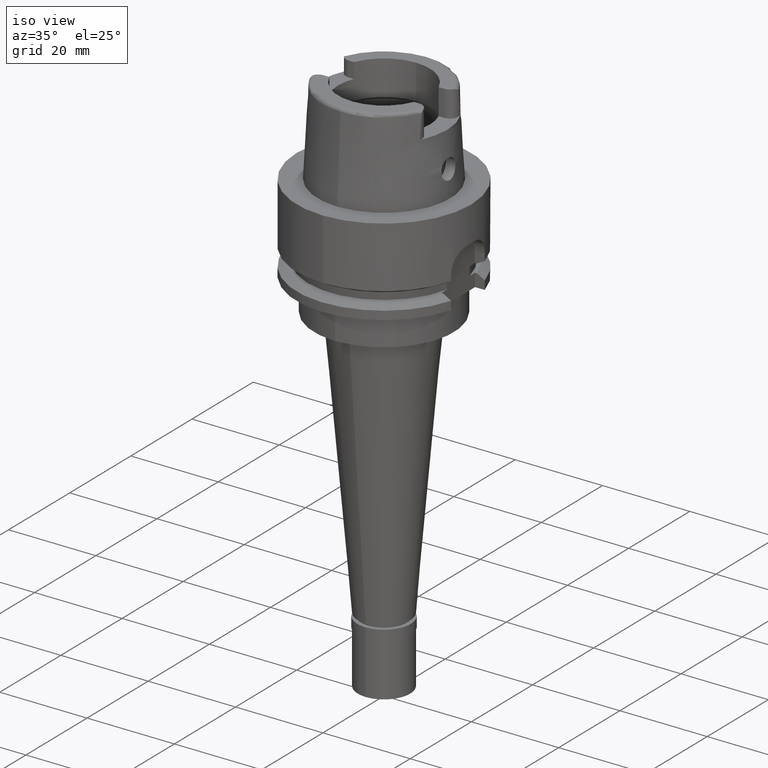
[diagram: clean part render]
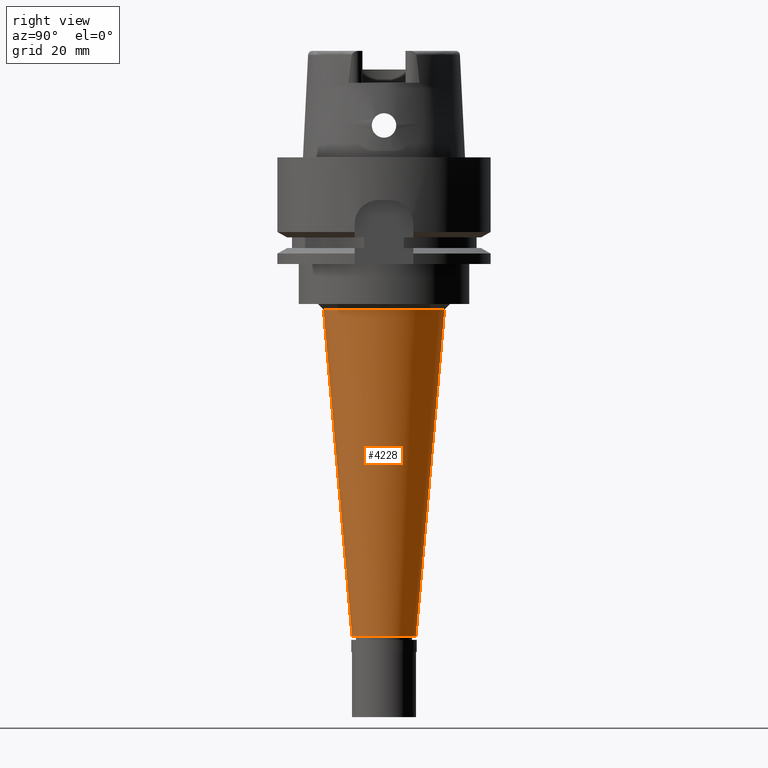
[diagram: tour spotlight — one face highlighted and labeled with its STEP entity id]
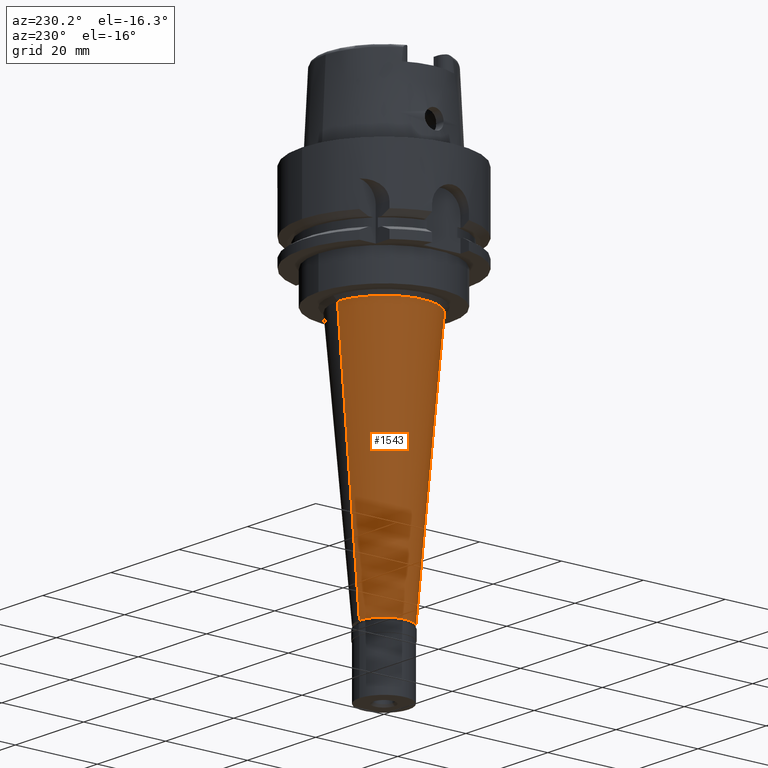
[diagram: tour spotlight — one face highlighted and labeled with its STEP entity id]
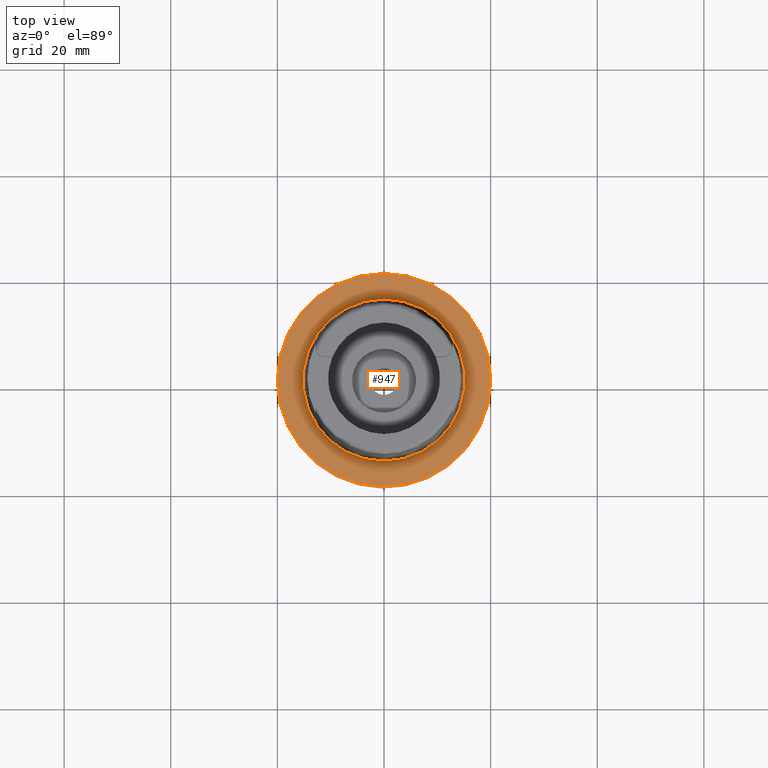
[diagram: tour spotlight — one face highlighted and labeled with its STEP entity id]
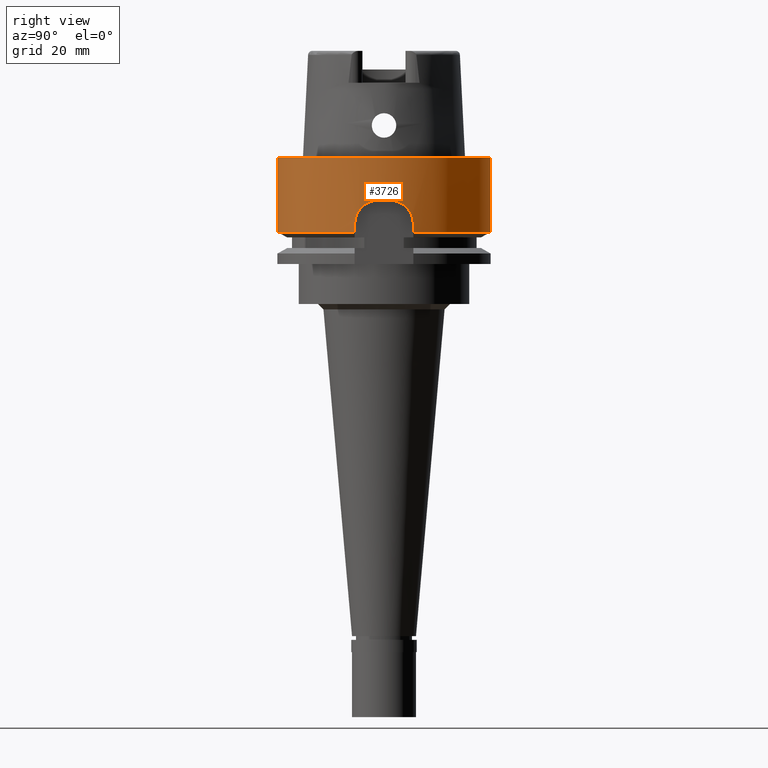
[diagram: tour spotlight — one face highlighted and labeled with its STEP entity id]
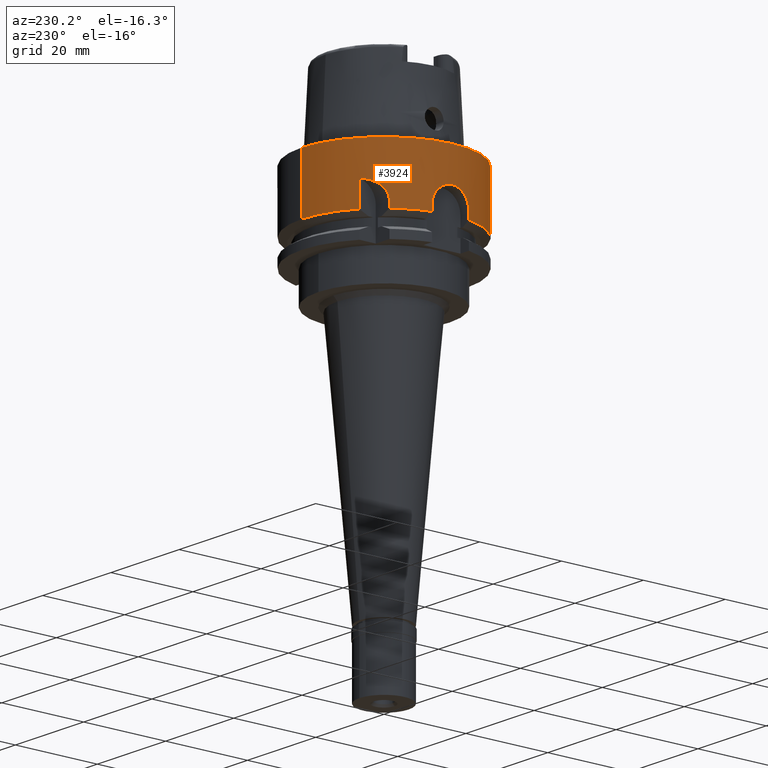
[diagram: tour spotlight — one face highlighted and labeled with its STEP entity id]
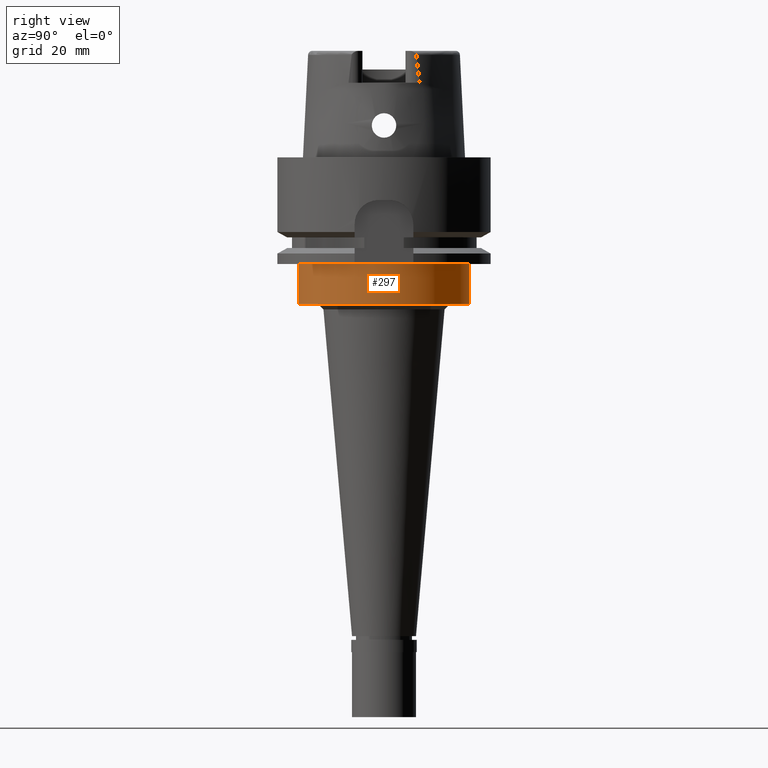
[diagram: tour spotlight — one face highlighted and labeled with its STEP entity id]
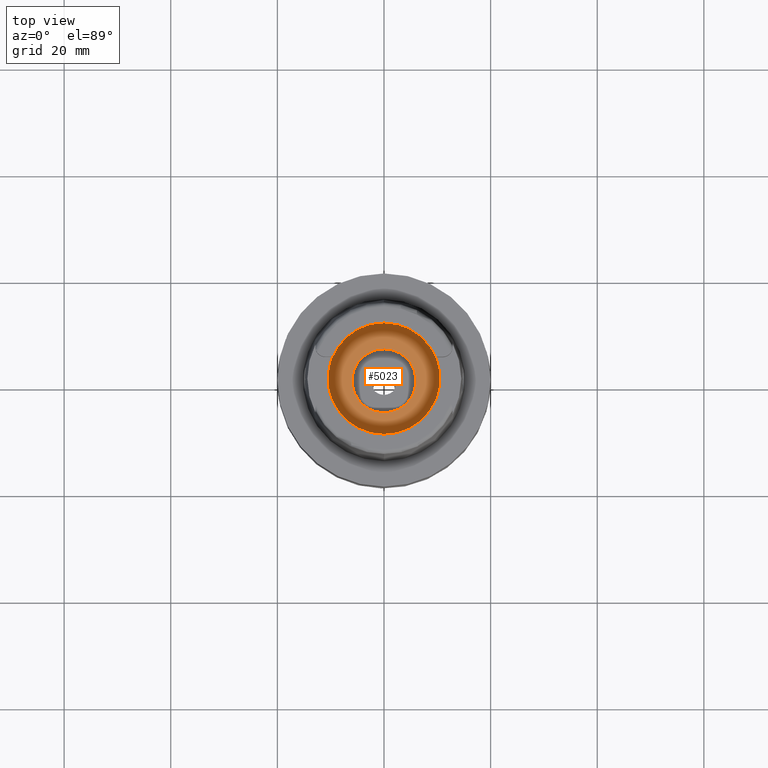
[diagram: tour spotlight — one face highlighted and labeled with its STEP entity id]
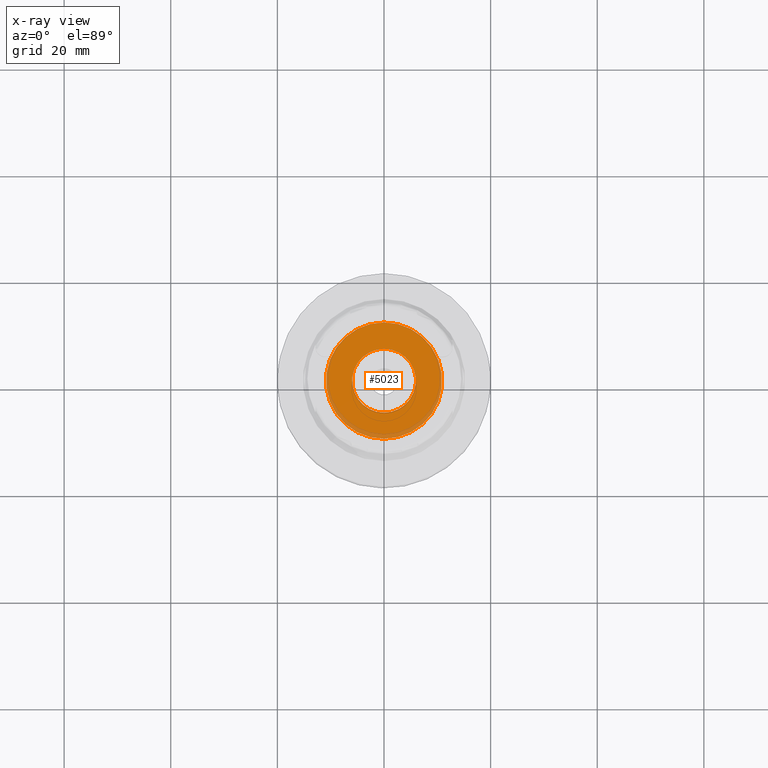
[diagram: x-ray of the same camera — body ghosted, this tour face saturated]
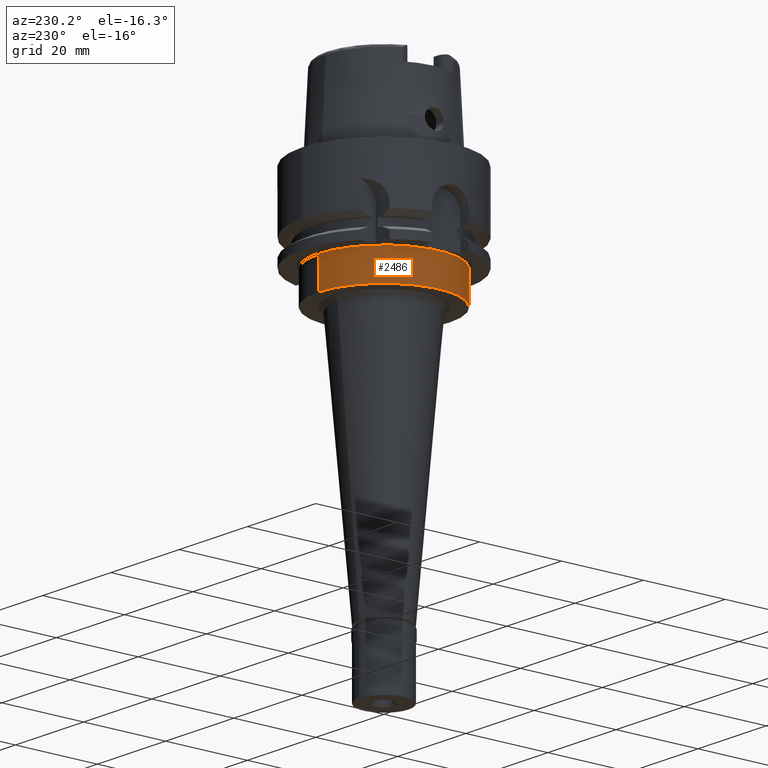
[diagram: tour spotlight — one face highlighted and labeled with its STEP entity id]
A machine part: a face-by-face anatomy tour. The part has 123 B-rep faces; the first image is the clean iso view, then the 8 largest visible faces are spotlighted one at a time (largest first), each with its STEP entity span.

Face 1 — right view, entity #4228. In plain terms, the highlighted conical surface has half-angle 5 deg.
Definition (entity closure, byte-faithful):
#403 = VERTEX_POINT ( 'NONE', #496 ) ;
#496 = CARTESIAN_POINT ( 'NONE',  ( 0.0000000000000000000, 6.000000000000000000, -89.80000000000001137 ) ) ;
#682 = AXIS2_PLACEMENT_3D ( 'NONE', #4333, #1913, #3560 ) ;
#751 = ORIENTED_EDGE ( 'NONE', *, *, #2133, .F. ) ;
#757 = ORIENTED_EDGE ( 'NONE', *, *, #4688, .F. ) ;
#895 = DIRECTION ( 'NONE',  ( 0.0000000000000000000, -0.08715574274766389740, -0.9961946980917451011 ) ) ;
#920 = DIRECTION ( 'NONE',  ( 0.0000000000000000000, -1.000000000000000000, 0.0000000000000000000 ) ) ;
#924 = LINE ( 'NONE', #4247, #3105 ) ;
#955 = ORIENTED_EDGE ( 'NONE', *, *, #3000, .T. ) ;
#985 = CARTESIAN_POINT ( 'NONE',  ( 0.0000000000000000000, 11.36305507414000004, -28.50000000000000000 ) ) ;
#1182 = CONICAL_SURFACE ( 'NONE', #4474, 8.681527537070001799, 0.08726646259969973729 ) ;
#1340 = VERTEX_POINT ( 'NONE', #985 ) ;
#1767 = CIRCLE ( 'NONE', #682, 11.36305507414000004 ) ;
#1913 = DIRECTION ( 'NONE',  ( 0.0000000000000000000, 0.0000000000000000000, 1.000000000000000000 ) ) ;
#1947 = CIRCLE ( 'NONE', #2784, 6.000000000000000000 ) ;
#2120 = CARTESIAN_POINT ( 'NONE',  ( 0.0000000000000000000, 0.0000000000000000000, -89.80000000000001137 ) ) ;
#2133 = EDGE_CURVE ( 'NONE', #1340, #403, #924, .T. ) ;
#2187 = DIRECTION ( 'NONE',  ( 0.0000000000000000000, 0.0000000000000000000, 1.000000000000000000 ) ) ;
#2527 = FACE_OUTER_BOUND ( 'NONE', #2991, .T. ) ;
#2784 = AXIS2_PLACEMENT_3D ( 'NONE', #2120, #3312, #920 ) ;
#2991 = EDGE_LOOP ( 'NONE', ( #757, #955, #3223, #751 ) ) ;
#3000 = EDGE_CURVE ( 'NONE', #3798, #4616, #4095, .T. ) ;
#3105 = VECTOR ( 'NONE', #895, 1000.000000000000114 ) ;
#3223 = ORIENTED_EDGE ( 'NONE', *, *, #3849, .T. ) ;
#3312 = DIRECTION ( 'NONE',  ( 0.0000000000000000000, 0.0000000000000000000, 1.000000000000000000 ) ) ;
#3459 = DIRECTION ( 'NONE',  ( 0.0000000000000000000, 1.000000000000000000, 0.0000000000000000000 ) ) ;
#3542 = VECTOR ( 'NONE', #4159, 1000.000000000000114 ) ;
#3560 = DIRECTION ( 'NONE',  ( 0.0000000000000000000, -1.000000000000000000, 0.0000000000000000000 ) ) ;
#3677 = CARTESIAN_POINT ( 'NONE',  ( 0.0000000000000000000, -11.36305507414000004, -28.50000000000000000 ) ) ;
#3798 = VERTEX_POINT ( 'NONE', #3677 ) ;
#3849 = EDGE_CURVE ( 'NONE', #4616, #403, #1947, .T. ) ;
#4095 = LINE ( 'NONE', #4574, #3542 ) ;
#4159 = DIRECTION ( 'NONE',  ( 0.0000000000000000000, 0.08715574274766389740, -0.9961946980917451011 ) ) ;
#4228 = ADVANCED_FACE ( 'NONE', ( #2527 ), #1182, .T. ) ;
#4247 = CARTESIAN_POINT ( 'NONE',  ( 0.0000000000000000000, 11.36305507414000004, -28.50000000000000000 ) ) ;
#4333 = CARTESIAN_POINT ( 'NONE',  ( 0.0000000000000000000, 0.0000000000000000000, -28.50000000000000000 ) ) ;
#4474 = AXIS2_PLACEMENT_3D ( 'NONE', #4599, #2187, #3459 ) ;
#4574 = CARTESIAN_POINT ( 'NONE',  ( 0.0000000000000000000, -11.36305507414000004, -28.50000000000000000 ) ) ;
#4599 = CARTESIAN_POINT ( 'NONE',  ( 0.0000000000000000000, 0.0000000000000000000, -59.14999999999999858 ) ) ;
#4616 = VERTEX_POINT ( 'NONE', #4719 ) ;
#4688 = EDGE_CURVE ( 'NONE', #3798, #1340, #1767, .T. ) ;
#4719 = CARTESIAN_POINT ( 'NONE',  ( 0.0000000000000000000, -6.000000000000000000, -89.80000000000001137 ) ) ;

Face 2 — auxiliary view, entity #1543. In plain terms, the highlighted conical surface has half-angle 5 deg.
Definition (entity closure, byte-faithful):
#186 = DIRECTION ( 'NONE',  ( 0.0000000000000000000, -1.000000000000000000, 0.0000000000000000000 ) ) ;
#403 = VERTEX_POINT ( 'NONE', #496 ) ;
#480 = CIRCLE ( 'NONE', #4709, 6.000000000000000000 ) ;
#496 = CARTESIAN_POINT ( 'NONE',  ( 0.0000000000000000000, 6.000000000000000000, -89.80000000000001137 ) ) ;
#583 = CIRCLE ( 'NONE', #5068, 11.36305507414000004 ) ;
#879 = DIRECTION ( 'NONE',  ( 0.0000000000000000000, 1.000000000000000000, 0.0000000000000000000 ) ) ;
#895 = DIRECTION ( 'NONE',  ( 0.0000000000000000000, -0.08715574274766389740, -0.9961946980917451011 ) ) ;
#924 = LINE ( 'NONE', #4247, #3105 ) ;
#985 = CARTESIAN_POINT ( 'NONE',  ( 0.0000000000000000000, 11.36305507414000004, -28.50000000000000000 ) ) ;
#1079 = EDGE_LOOP ( 'NONE', ( #3020, #3477, #2844, #3999 ) ) ;
#1340 = VERTEX_POINT ( 'NONE', #985 ) ;
#1543 = ADVANCED_FACE ( 'NONE', ( #2466 ), #4441, .T. ) ;
#1676 = DIRECTION ( 'NONE',  ( 0.0000000000000000000, 0.0000000000000000000, 1.000000000000000000 ) ) ;
#1938 = EDGE_CURVE ( 'NONE', #403, #4616, #480, .T. ) ;
#1995 = CARTESIAN_POINT ( 'NONE',  ( 0.0000000000000000000, 0.0000000000000000000, -59.14999999999999858 ) ) ;
#2133 = EDGE_CURVE ( 'NONE', #1340, #403, #924, .T. ) ;
#2239 = DIRECTION ( 'NONE',  ( 0.0000000000000000000, 0.0000000000000000000, -1.000000000000000000 ) ) ;
#2291 = CARTESIAN_POINT ( 'NONE',  ( 0.0000000000000000000, 0.0000000000000000000, -28.50000000000000000 ) ) ;
#2466 = FACE_OUTER_BOUND ( 'NONE', #1079, .T. ) ;
#2585 = AXIS2_PLACEMENT_3D ( 'NONE', #1995, #1676, #879 ) ;
#2673 = CARTESIAN_POINT ( 'NONE',  ( 0.0000000000000000000, 0.0000000000000000000, -89.80000000000001137 ) ) ;
#2702 = DIRECTION ( 'NONE',  ( 0.0000000000000000000, 1.000000000000000000, 0.0000000000000000000 ) ) ;
#2844 = ORIENTED_EDGE ( 'NONE', *, *, #3200, .T. ) ;
#3000 = EDGE_CURVE ( 'NONE', #3798, #4616, #4095, .T. ) ;
#3020 = ORIENTED_EDGE ( 'NONE', *, *, #1938, .T. ) ;
#3105 = VECTOR ( 'NONE', #895, 1000.000000000000114 ) ;
#3200 = EDGE_CURVE ( 'NONE', #3798, #1340, #583, .T. ) ;
#3477 = ORIENTED_EDGE ( 'NONE', *, *, #3000, .F. ) ;
#3542 = VECTOR ( 'NONE', #4159, 1000.000000000000114 ) ;
#3677 = CARTESIAN_POINT ( 'NONE',  ( 0.0000000000000000000, -11.36305507414000004, -28.50000000000000000 ) ) ;
#3798 = VERTEX_POINT ( 'NONE', #3677 ) ;
#3999 = ORIENTED_EDGE ( 'NONE', *, *, #2133, .T. ) ;
#4095 = LINE ( 'NONE', #4574, #3542 ) ;
#4159 = DIRECTION ( 'NONE',  ( 0.0000000000000000000, 0.08715574274766389740, -0.9961946980917451011 ) ) ;
#4247 = CARTESIAN_POINT ( 'NONE',  ( 0.0000000000000000000, 11.36305507414000004, -28.50000000000000000 ) ) ;
#4301 = DIRECTION ( 'NONE',  ( 0.0000000000000000000, 0.0000000000000000000, 1.000000000000000000 ) ) ;
#4441 = CONICAL_SURFACE ( 'NONE', #2585, 8.681527537070001799, 0.08726646259969973729 ) ;
#4574 = CARTESIAN_POINT ( 'NONE',  ( 0.0000000000000000000, -11.36305507414000004, -28.50000000000000000 ) ) ;
#4616 = VERTEX_POINT ( 'NONE', #4719 ) ;
#4709 = AXIS2_PLACEMENT_3D ( 'NONE', #2673, #4301, #2702 ) ;
#4719 = CARTESIAN_POINT ( 'NONE',  ( 0.0000000000000000000, -6.000000000000000000, -89.80000000000001137 ) ) ;
#5068 = AXIS2_PLACEMENT_3D ( 'NONE', #2291, #2239, #186 ) ;

Face 3 — top view, entity #947. In plain terms, the highlighted planar face has unit normal (0, 0, -1).
Definition (entity closure, byte-faithful):
#22 = CARTESIAN_POINT ( 'NONE',  ( 0.0000000000000000000, 1.342457523729000028E-14, 0.0000000000000000000 ) ) ;
#143 = VERTEX_POINT ( 'NONE', #1610 ) ;
#202 = ORIENTED_EDGE ( 'NONE', *, *, #5066, .F. ) ;
#463 = PLANE ( 'NONE',  #1057 ) ;
#733 = CIRCLE ( 'NONE', #4540, 20.00000000000000000 ) ;
#771 = ORIENTED_EDGE ( 'NONE', *, *, #4524, .F. ) ;
#842 = DIRECTION ( 'NONE',  ( 0.0000000000000000000, 0.0000000000000000000, 1.000000000000000000 ) ) ;
#883 = DIRECTION ( 'NONE',  ( 0.0000000000000000000, 0.0000000000000000000, -1.000000000000000000 ) ) ;
#947 = ADVANCED_FACE ( 'NONE', ( #2472, #965 ), #463, .F. ) ;
#965 = FACE_BOUND ( 'NONE', #1100, .T. ) ;
#1057 = AXIS2_PLACEMENT_3D ( 'NONE', #1371, #883, #1706 ) ;
#1100 = EDGE_LOOP ( 'NONE', ( #771, #4340 ) ) ;
#1268 = CIRCLE ( 'NONE', #4243, 15.20000663301000010 ) ;
#1317 = DIRECTION ( 'NONE',  ( 0.0000000000000000000, -1.000000000000000000, 0.0000000000000000000 ) ) ;
#1371 = CARTESIAN_POINT ( 'NONE',  ( 0.0000000000000000000, 1.224646799146999965E-14, 0.0000000000000000000 ) ) ;
#1610 = CARTESIAN_POINT ( 'NONE',  ( 0.0000000000000000000, -20.00000000000000000, 4.263256414560999963E-14 ) ) ;
#1613 = AXIS2_PLACEMENT_3D ( 'NONE', #4098, #2825, #4131 ) ;
#1706 = DIRECTION ( 'NONE',  ( 0.0000000000000000000, -1.000000000000000000, 0.0000000000000000000 ) ) ;
#1747 = VERTEX_POINT ( 'NONE', #2943 ) ;
#2040 = CIRCLE ( 'NONE', #1613, 20.00000000000000000 ) ;
#2106 = EDGE_CURVE ( 'NONE', #143, #2502, #733, .T. ) ;
#2472 = FACE_OUTER_BOUND ( 'NONE', #3442, .T. ) ;
#2502 = VERTEX_POINT ( 'NONE', #2905 ) ;
#2520 = DIRECTION ( 'NONE',  ( 0.0000000000000000000, 0.0000000000000000000, 1.000000000000000000 ) ) ;
#2825 = DIRECTION ( 'NONE',  ( 0.0000000000000000000, 0.0000000000000000000, -1.000000000000000000 ) ) ;
#2905 = CARTESIAN_POINT ( 'NONE',  ( 0.0000000000000000000, 20.00000000000000000, 2.842170943039999687E-14 ) ) ;
#2943 = CARTESIAN_POINT ( 'NONE',  ( 0.0000000000000000000, 15.20000663301000010, 0.0000000000000000000 ) ) ;
#3396 = DIRECTION ( 'NONE',  ( 0.0000000000000000000, -1.000000000000000000, 0.0000000000000000000 ) ) ;
#3404 = CARTESIAN_POINT ( 'NONE',  ( 0.0000000000000000000, 1.342457523729000028E-14, 0.0000000000000000000 ) ) ;
#3442 = EDGE_LOOP ( 'NONE', ( #202, #4876 ) ) ;
#3467 = CIRCLE ( 'NONE', #4151, 15.20000663301000010 ) ;
#3673 = CARTESIAN_POINT ( 'NONE',  ( 0.0000000000000000000, -15.20000663301000010, 1.136868377215999875E-13 ) ) ;
#3773 = DIRECTION ( 'NONE',  ( 0.0000000000000000000, 1.000000000000000000, 0.0000000000000000000 ) ) ;
#3911 = EDGE_CURVE ( 'NONE', #4096, #1747, #3467, .T. ) ;
#4096 = VERTEX_POINT ( 'NONE', #3673 ) ;
#4098 = CARTESIAN_POINT ( 'NONE',  ( 0.0000000000000000000, 1.543667290324999758E-14, 4.263256414560999963E-14 ) ) ;
#4131 = DIRECTION ( 'NONE',  ( 0.0000000000000000000, 1.000000000000000000, 0.0000000000000000000 ) ) ;
#4138 = CARTESIAN_POINT ( 'NONE',  ( 0.0000000000000000000, 1.543667290324999758E-14, 4.263256414560999963E-14 ) ) ;
#4151 = AXIS2_PLACEMENT_3D ( 'NONE', #22, #842, #1317 ) ;
#4243 = AXIS2_PLACEMENT_3D ( 'NONE', #3404, #2520, #3773 ) ;
#4340 = ORIENTED_EDGE ( 'NONE', *, *, #3911, .F. ) ;
#4524 = EDGE_CURVE ( 'NONE', #1747, #4096, #1268, .T. ) ;
#4540 = AXIS2_PLACEMENT_3D ( 'NONE', #4138, #4636, #3396 ) ;
#4636 = DIRECTION ( 'NONE',  ( 0.0000000000000000000, 0.0000000000000000000, -1.000000000000000000 ) ) ;
#4876 = ORIENTED_EDGE ( 'NONE', *, *, #2106, .F. ) ;
#5066 = EDGE_CURVE ( 'NONE', #2502, #143, #2040, .T. ) ;

Face 4 — right view, entity #3726. In plain terms, the highlighted cylindrical surface (partial cylindrical patch) has radius 20 mm, axis along (0, 0, -1).
Definition (entity closure, byte-faithful):
#16 = CARTESIAN_POINT ( 'NONE',  ( 19.71035955465800527, 3.396378701076609552, -8.688318090813437422 ) ) ;
#33 = DIRECTION ( 'NONE',  ( 0.0000000000000000000, 0.0000000000000000000, -1.000000000000000000 ) ) ;
#71 = CARTESIAN_POINT ( 'NONE',  ( 19.26926780385338844, 5.358523449145703665, -11.37062589925078626 ) ) ;
#102 = CARTESIAN_POINT ( 'NONE',  ( 19.52061580295159970, 4.353396961917777475, -9.498898205557379626 ) ) ;
#140 = CARTESIAN_POINT ( 'NONE',  ( 0.0000000000000000000, 20.00000000000000000, -13.97927405783999966 ) ) ;
#143 = VERTEX_POINT ( 'NONE', #1610 ) ;
#159 = CARTESIAN_POINT ( 'NONE',  ( 19.86177198028481428, -2.346345507704530764, -8.205458714641451934 ) ) ;
#172 = DIRECTION ( 'NONE',  ( -9.335120829406403131E-08, -3.263687556539141605E-07, -0.9999999999999423794 ) ) ;
#272 = CARTESIAN_POINT ( 'NONE',  ( 19.45508985667163060, -4.643627919327275144, -9.842632388975317781 ) ) ;
#294 = CARTESIAN_POINT ( 'NONE',  ( 19.81802915263665810, -2.691371042508007960, -8.329944904972130360 ) ) ;
#319 = CARTESIAN_POINT ( 'NONE',  ( 19.22888452303000761, -5.499999999999999112, -11.94439189503790466 ) ) ;
#328 = EDGE_CURVE ( 'NONE', #2018, #4798, #2753, .T. ) ;
#345 = CARTESIAN_POINT ( 'NONE',  ( 19.57635034363546112, -4.094674932752772278, -9.232753233935065751 ) ) ;
#419 = CARTESIAN_POINT ( 'NONE',  ( 19.64341734775709369, 3.759157193626918581, -8.942060455816395859 ) ) ;
#467 = DIRECTION ( 'NONE',  ( 0.0000000000000000000, -1.000000000000000000, 0.0000000000000000000 ) ) ;
#494 = CARTESIAN_POINT ( 'NONE',  ( 19.23657657652016795, 5.474683009936600619, -11.94180794608985252 ) ) ;
#502 = VERTEX_POINT ( 'NONE', #4730 ) ;
#553 = CARTESIAN_POINT ( 'NONE',  ( 19.97498435543999662, -1.000000000000000000, -8.000000000000000000 ) ) ;
#619 = LINE ( 'NONE', #3079, #1405 ) ;
#639 = CARTESIAN_POINT ( 'NONE',  ( 19.22888452303000051, -5.499999999998999911, -13.97927405783999966 ) ) ;
#658 = CARTESIAN_POINT ( 'NONE',  ( 19.63055863444332161, -3.825429343080176015, -8.995945353307421399 ) ) ;
#684 = CARTESIAN_POINT ( 'NONE',  ( 19.56749878760233230, -4.136808821677538717, -9.273401578788352140 ) ) ;
#707 = CARTESIAN_POINT ( 'NONE',  ( 19.50258987356185969, -4.440814174074203535, -9.576490243884636655 ) ) ;
#732 = CARTESIAN_POINT ( 'NONE',  ( 19.55880979920604190, -4.177717557293585848, -9.313760926475668001 ) ) ;
#762 = CARTESIAN_POINT ( 'NONE',  ( 19.22888452303000051, 5.499999999999999112, -12.22477767450763508 ) ) ;
#787 = B_SPLINE_CURVE_WITH_KNOTS ( 'NONE', 3,
 ( #5160, #762, #494, #3224, #71, #4887, #2823, #3329, #2446, #4941, #4043, #3729, #788, #2476, #3621, #2033, #2419, #2846, #3646, #102, #2396, #861, #2006, #2799, #4416, #1256, #1657, #419, #4018, #16, #1609, #3700, #4097, #4435, #4915, #1710, #1229, #4483, #4456 ),
 .UNSPECIFIED., .F., .F.,
 ( 4, 2, 2, 1, 1, 1, 1, 2, 2, 2, 2, 2, 1, 1, 2, 2, 2, 2, 2, 1, 2, 2, 4 ),
 ( 0.0000000000000000000, 0.1249999999999510392, 0.1874999999999265032, 0.2187499999999142908, 0.2343749999999079348, 0.2421874999999051314, 0.2460937499999034106, 0.2480468749999029665, 0.2499999999999024669, 0.3749999999999019673, 0.4374999999999021338, 0.4687499999999019118, 0.4843749999999021338, 0.4921874999999025779, 0.4960937499999029665, 0.4999999999999032996, 0.5624999999999152900, 0.6249999999999273914, 0.6874999999999393818, 0.7187499999999454880, 0.7343749999999483746, 0.7499999999999512612, 1.000000000000000000 ),
 .UNSPECIFIED. ) ;
#788 = CARTESIAN_POINT ( 'NONE',  ( 19.32083712209427873, 5.168052201873403639, -10.80372376177877314 ) ) ;
#796 = VERTEX_POINT ( 'NONE', #4387 ) ;
#861 = CARTESIAN_POINT ( 'NONE',  ( 19.54208649520453278, 4.255394358955884471, -9.393024476889040741 ) ) ;
#880 = FACE_OUTER_BOUND ( 'NONE', #2122, .T. ) ;
#902 = VERTEX_POINT ( 'NONE', #4506 ) ;
#917 = CARTESIAN_POINT ( 'NONE',  ( 0.0000000000000000000, 1.543667290324999758E-14, -8.000000000000000000 ) ) ;
#927 = VECTOR ( 'NONE', #2319, 1000.000000000000000 ) ;
#1000 = DIRECTION ( 'NONE',  ( 0.0000000000000000000, 0.0000000000000000000, 1.000000000000000000 ) ) ;
#1032 = CARTESIAN_POINT ( 'NONE',  ( 19.88657340472432722, -2.128521744545384564, -8.141174127915954628 ) ) ;
#1084 = LINE ( 'NONE', #1112, #927 ) ;
#1112 = CARTESIAN_POINT ( 'NONE',  ( 0.0000000000000000000, 20.00000000000000000, 2.842170943039999687E-14 ) ) ;
#1158 = CARTESIAN_POINT ( 'NONE',  ( 19.56297054243317746, -4.158183768741362307, -9.294379057495527618 ) ) ;
#1181 = CARTESIAN_POINT ( 'NONE',  ( 19.82047669593163519, -2.673243496814583953, -8.322638189075524551 ) ) ;
#1229 = CARTESIAN_POINT ( 'NONE',  ( 19.89329510128545664, 2.145013587834520674, -8.101754134636035332 ) ) ;
#1239 = VERTEX_POINT ( 'NONE', #140 ) ;
#1256 = CARTESIAN_POINT ( 'NONE',  ( 19.57636077434077393, 4.096058062432208935, -9.231008306331434099 ) ) ;
#1308 = VERTEX_POINT ( 'NONE', #639 ) ;
#1319 = EDGE_CURVE ( 'NONE', #902, #1308, #619, .T. ) ;
#1346 = CARTESIAN_POINT ( 'NONE',  ( 19.94133856653591153, -1.553011090586176257, -8.024556776068822117 ) ) ;
#1405 = VECTOR ( 'NONE', #172, 1000.000000000000114 ) ;
#1439 = CYLINDRICAL_SURFACE ( 'NONE', #2117, 20.00000000000000000 ) ;
#1486 = CARTESIAN_POINT ( 'NONE',  ( 19.33826880039561047, -5.102721284852711925, -10.65105757695662270 ) ) ;
#1510 = CARTESIAN_POINT ( 'NONE',  ( 19.60629991882707301, -3.947946776223751009, -9.099636447453219645 ) ) ;
#1535 = CARTESIAN_POINT ( 'NONE',  ( 19.34831496731364453, -5.064985629941955558, -10.56880039146197525 ) ) ;
#1559 = CARTESIAN_POINT ( 'NONE',  ( 19.22888452303000051, -5.500000000000000000, -12.50000000000000000 ) ) ;
#1580 = CARTESIAN_POINT ( 'NONE',  ( 19.69786298772580579, -3.463279942955271640, -8.734041853009086864 ) ) ;
#1609 = CARTESIAN_POINT ( 'NONE',  ( 19.73181176401502412, 3.269800688285884771, -8.611531494186243307 ) ) ;
#1610 = CARTESIAN_POINT ( 'NONE',  ( 0.0000000000000000000, -20.00000000000000000, 4.263256414560999963E-14 ) ) ;
#1613 = AXIS2_PLACEMENT_3D ( 'NONE', #4098, #2825, #4131 ) ;
#1657 = CARTESIAN_POINT ( 'NONE',  ( 19.59870672098418609, 3.986864991692018023, -9.130946759011775882 ) ) ;
#1710 = CARTESIAN_POINT ( 'NONE',  ( 19.80730337054795953, 2.769524427650016385, -8.362323385757935768 ) ) ;
#1813 = DIRECTION ( 'NONE',  ( 0.0000000000000000000, 4.549132851063000272E-14, -1.000000000000000000 ) ) ;
#1851 = CARTESIAN_POINT ( 'NONE',  ( 19.22888455207999669, 5.499999898428999501, -13.97927490900000080 ) ) ;
#1879 = CARTESIAN_POINT ( 'NONE',  ( 19.35553016788671599, -5.037776128391355357, -10.51239473278588932 ) ) ;
#1898 = CARTESIAN_POINT ( 'NONE',  ( 19.64423286475271269, -3.753960927275207027, -8.940340451240164299 ) ) ;
#1952 = ORIENTED_EDGE ( 'NONE', *, *, #4110, .T. ) ;
#1957 = CARTESIAN_POINT ( 'NONE',  ( 19.32378822081918557, -5.157015763332991831, -10.77685397598820494 ) ) ;
#1958 = CIRCLE ( 'NONE', #4658, 20.00000000000000000 ) ;
#2006 = CARTESIAN_POINT ( 'NONE',  ( 19.54717881154443759, 4.231843806285925602, -9.368656200124942046 ) ) ;
#2018 = VERTEX_POINT ( 'NONE', #2563 ) ;
#2033 = CARTESIAN_POINT ( 'NONE',  ( 19.43259695192461578, 4.734475810383234062, -9.984975962784744752 ) ) ;
#2040 = CIRCLE ( 'NONE', #1613, 20.00000000000000000 ) ;
#2117 = AXIS2_PLACEMENT_3D ( 'NONE', #3662, #33, #4473 ) ;
#2122 = EDGE_LOOP ( 'NONE', ( #4463, #3270, #2661, #3586, #3722, #3380, #4103, #1952, #3363, #2853 ) ) ;
#2192 = CARTESIAN_POINT ( 'NONE',  ( 19.83251768747857469, -2.582538949086697233, -8.287137072048723851 ) ) ;
#2209 = CARTESIAN_POINT ( 'NONE',  ( 0.0000000000000000000, -20.00000000000000000, 2.842170943039999687E-14 ) ) ;
#2214 = B_SPLINE_CURVE_WITH_KNOTS ( 'NONE', 3,
 ( #553, #4684, #1346, #3785, #1032, #159, #2989, #2192, #3815, #1181, #294, #5207, #2273, #3966, #5111, #3517, #3917, #4347, #5135, #1580, #3891, #2344, #3490, #4293, #4810, #2742, #3147, #1898, #658, #1510, #3093, #5184, #345, #684, #1158, #3193, #2720, #732, #707, #272, #3543, #4706, #1879, #1535, #1486, #3121, #4735, #4367, #2370, #1957, #2768, #2301, #319, #1559 ),
 .UNSPECIFIED., .F., .F.,
 ( 4, 2, 2, 1, 1, 1, 2, 2, 2, 2, 1, 1, 1, 1, 1, 2, 2, 2, 2, 2, 1, 1, 1, 2, 2, 2, 2, 2, 1, 1, 1, 2, 2, 4 ),
 ( 0.0000000000000000000, 0.1250000000000925093, 0.1875000000001387224, 0.2187500000001618428, 0.2343750000001735834, 0.2421875000001792733, 0.2460937500001820211, 0.2500000000001847411, 0.3125000000002320366, 0.3437500000002553513, 0.3593750000002669531, 0.3671875000002726708, 0.3710937500002751688, 0.3730468750002763345, 0.3740234375002770562, 0.3745117187502772782, 0.3750000000002774447, 0.4375000000002126077, 0.4687500000001800782, 0.4843750000001642020, 0.4921875000001564304, 0.4960937500001526557, 0.4980468750001506018, 0.4990234375001497136, 0.5000000000001487699, 0.6250000000000823785, 0.6875000000000491829, 0.7187500000000325295, 0.7343750000000237588, 0.7421875000000195399, 0.7460937500000179856, 0.7480468750000176525, 0.7500000000000173195, 1.000000000000000000 ),
 .UNSPECIFIED. ) ;
#2272 = AXIS2_PLACEMENT_3D ( 'NONE', #2740, #3964, #2843 ) ;
#2273 = CARTESIAN_POINT ( 'NONE',  ( 19.79924970797953421, -2.829005952010215541, -8.386433423952727395 ) ) ;
#2301 = CARTESIAN_POINT ( 'NONE',  ( 19.26028250093624195, -5.395673741350208275, -11.35512993866811371 ) ) ;
#2319 = DIRECTION ( 'NONE',  ( 0.0000000000000000000, -4.574547001069000145E-14, -1.000000000000000000 ) ) ;
#2344 = CARTESIAN_POINT ( 'NONE',  ( 19.69383547139038981, -3.486093573305517168, -8.749086689143920736 ) ) ;
#2370 = CARTESIAN_POINT ( 'NONE',  ( 19.32450405234231638, -5.154327359260659769, -10.77038256577791842 ) ) ;
#2396 = CARTESIAN_POINT ( 'NONE',  ( 19.53037130707301117, 4.309204805725075360, -9.449976948277296174 ) ) ;
#2419 = CARTESIAN_POINT ( 'NONE',  ( 19.45403425829189104, 4.645501968449847752, -9.856618486522032541 ) ) ;
#2446 = CARTESIAN_POINT ( 'NONE',  ( 19.31456378290192788, 5.191553160485575802, -10.86246611052810707 ) ) ;
#2476 = CARTESIAN_POINT ( 'NONE',  ( 19.34371990524743268, 5.082188777407422364, -10.59321086055394368 ) ) ;
#2502 = VERTEX_POINT ( 'NONE', #2905 ) ;
#2563 = CARTESIAN_POINT ( 'NONE',  ( 19.97498435543999662, -1.000000000000000000, -8.000000000000000000 ) ) ;
#2659 = EDGE_CURVE ( 'NONE', #796, #502, #3464, .T. ) ;
#2661 = ORIENTED_EDGE ( 'NONE', *, *, #2659, .F. ) ;
#2690 = DIRECTION ( 'NONE',  ( -1.963880633277989795E-08, 6.866245508930962446E-08, 0.9999999999999973355 ) ) ;
#2720 = CARTESIAN_POINT ( 'NONE',  ( 19.55969460679819605, -4.173572332193474566, -9.309630505289558045 ) ) ;
#2740 = CARTESIAN_POINT ( 'NONE',  ( 0.0000000000000000000, 1.047199923064999921E-14, -13.97927405783999966 ) ) ;
#2742 = CARTESIAN_POINT ( 'NONE',  ( 19.69011979538656121, -3.507041824432302501, -8.763022894637767735 ) ) ;
#2753 = CIRCLE ( 'NONE', #4023, 20.00000000000000355 ) ;
#2768 = CARTESIAN_POINT ( 'NONE',  ( 19.32356905015351245, -5.157838959567653703, -10.77883802536317148 ) ) ;
#2799 = CARTESIAN_POINT ( 'NONE',  ( 19.55058958275470360, 4.216034114112235720, -9.352421095808553630 ) ) ;
#2823 = CARTESIAN_POINT ( 'NONE',  ( 19.29594961439740075, 5.260844250046678106, -11.04907114761905795 ) ) ;
#2825 = DIRECTION ( 'NONE',  ( 0.0000000000000000000, 0.0000000000000000000, -1.000000000000000000 ) ) ;
#2843 = DIRECTION ( 'NONE',  ( 0.9614442261514726251, 0.2749999999999924727, 0.0000000000000000000 ) ) ;
#2846 = CARTESIAN_POINT ( 'NONE',  ( 19.48924179870268603, 4.493187827705320103, -9.661967863586884420 ) ) ;
#2853 = ORIENTED_EDGE ( 'NONE', *, *, #4002, .F. ) ;
#2872 = CARTESIAN_POINT ( 'NONE',  ( 0.0000000000000000000, 1.047199923064999921E-14, -13.97927405783999966 ) ) ;
#2885 = EDGE_CURVE ( 'NONE', #796, #1239, #4550, .T. ) ;
#2905 = CARTESIAN_POINT ( 'NONE',  ( 0.0000000000000000000, 20.00000000000000000, 2.842170943039999687E-14 ) ) ;
#2989 = CARTESIAN_POINT ( 'NONE',  ( 19.84876205538503058, -2.455396895395192125, -8.240630355209964009 ) ) ;
#3039 = CARTESIAN_POINT ( 'NONE',  ( 0.0000000000000000000, -20.00000000000000000, -13.97927405783999966 ) ) ;
#3079 = CARTESIAN_POINT ( 'NONE',  ( 19.22888452303000051, -5.500000000000000000, -12.50000000000000000 ) ) ;
#3093 = CARTESIAN_POINT ( 'NONE',  ( 19.59758911859629293, -3.991323908915184848, -9.137590959578149707 ) ) ;
#3121 = CARTESIAN_POINT ( 'NONE',  ( 19.33343987542199116, -5.120819323139696344, -10.69159904264108008 ) ) ;
#3147 = CARTESIAN_POINT ( 'NONE',  ( 19.67776081537650512, -3.576150304528646018, -8.807391548428219252 ) ) ;
#3193 = CARTESIAN_POINT ( 'NONE',  ( 19.56100790868513428, -4.167408501126094400, -9.303510949895644089 ) ) ;
#3224 = CARTESIAN_POINT ( 'NONE',  ( 19.25965273699067737, 5.393015374543157492, -11.51384204047051973 ) ) ;
#3270 = ORIENTED_EDGE ( 'NONE', *, *, #4056, .F. ) ;
#3329 = CARTESIAN_POINT ( 'NONE',  ( 19.30814873047946278, 5.215510626097160873, -10.92456478975120504 ) ) ;
#3363 = ORIENTED_EDGE ( 'NONE', *, *, #1319, .F. ) ;
#3380 = ORIENTED_EDGE ( 'NONE', *, *, #5066, .T. ) ;
#3464 = LINE ( 'NONE', #1851, #4222 ) ;
#3490 = CARTESIAN_POINT ( 'NONE',  ( 19.69325742030598292, -3.489356284146566622, -8.751252609717051101 ) ) ;
#3517 = CARTESIAN_POINT ( 'NONE',  ( 19.73928629156426595, -3.219242459443588000, -8.584494034111612493 ) ) ;
#3543 = CARTESIAN_POINT ( 'NONE',  ( 19.39626597440157596, -4.881159778159820384, -10.21778494986767782 ) ) ;
#3586 = ORIENTED_EDGE ( 'NONE', *, *, #2885, .T. ) ;
#3621 = CARTESIAN_POINT ( 'NONE',  ( 19.37438819454251515, 4.968981331610065943, -10.35901678339997645 ) ) ;
#3646 = CARTESIAN_POINT ( 'NONE',  ( 19.50148624231626115, 4.439276188996609029, -9.596741149152316908 ) ) ;
#3662 = CARTESIAN_POINT ( 'NONE',  ( 0.0000000000000000000, 1.543667290324999758E-14, 26.05000000000000071 ) ) ;
#3700 = CARTESIAN_POINT ( 'NONE',  ( 19.76286317223778255, 3.073239668982341577, -8.505350716737437367 ) ) ;
#3722 = ORIENTED_EDGE ( 'NONE', *, *, #4005, .F. ) ;
#3726 = ADVANCED_FACE ( 'NONE', ( #880 ), #1439, .T. ) ;
#3729 = CARTESIAN_POINT ( 'NONE',  ( 19.32022953616849392, 5.170331358467291416, -10.80933174751684334 ) ) ;
#3785 = CARTESIAN_POINT ( 'NONE',  ( 19.90148312053728219, -1.983686740089123823, -8.106400823173725456 ) ) ;
#3815 = CARTESIAN_POINT ( 'NONE',  ( 19.82412897297784227, -2.646045169958980647, -8.311778255061128107 ) ) ;
#3891 = CARTESIAN_POINT ( 'NONE',  ( 19.69518156564609157, -3.478484172201601332, -8.744049556565625991 ) ) ;
#3917 = CARTESIAN_POINT ( 'NONE',  ( 19.72232671852873409, -3.321156288970464221, -8.644641456641281252 ) ) ;
#3964 = DIRECTION ( 'NONE',  ( 0.0000000000000000000, 0.0000000000000000000, 1.000000000000000000 ) ) ;
#3966 = CARTESIAN_POINT ( 'NONE',  ( 19.78083687765314735, -2.955267636968208489, -8.444274585361519314 ) ) ;
#4002 = EDGE_CURVE ( 'NONE', #2018, #902, #2214, .T. ) ;
#4005 = EDGE_CURVE ( 'NONE', #2502, #1239, #1084, .T. ) ;
#4018 = CARTESIAN_POINT ( 'NONE',  ( 19.66595259486028269, 3.639708197369829534, -8.852604972239468850 ) ) ;
#4023 = AXIS2_PLACEMENT_3D ( 'NONE', #917, #1000, #4917 ) ;
#4043 = CARTESIAN_POINT ( 'NONE',  ( 19.31927554125320867, 5.173908272951318388, -10.81818178498428473 ) ) ;
#4056 = EDGE_CURVE ( 'NONE', #502, #4798, #787, .T. ) ;
#4097 = CARTESIAN_POINT ( 'NONE',  ( 19.77810714989596974, 2.973287712629881785, -8.454509563930937333 ) ) ;
#4098 = CARTESIAN_POINT ( 'NONE',  ( 0.0000000000000000000, 1.543667290324999758E-14, 4.263256414560999963E-14 ) ) ;
#4103 = ORIENTED_EDGE ( 'NONE', *, *, #4479, .T. ) ;
#4110 = EDGE_CURVE ( 'NONE', #4245, #1308, #1958, .T. ) ;
#4131 = DIRECTION ( 'NONE',  ( 0.0000000000000000000, 1.000000000000000000, 0.0000000000000000000 ) ) ;
#4222 = VECTOR ( 'NONE', #2690, 1000.000000000000227 ) ;
#4245 = VERTEX_POINT ( 'NONE', #3039 ) ;
#4293 = CARTESIAN_POINT ( 'NONE',  ( 19.69287179657276710, -3.491531764190564768, -8.752698147519648586 ) ) ;
#4347 = CARTESIAN_POINT ( 'NONE',  ( 19.71365006011778576, -3.372487405428365115, -8.675839264552720920 ) ) ;
#4367 = CARTESIAN_POINT ( 'NONE',  ( 19.32558386707967557, -5.150273171863361199, -10.76065550155922956 ) ) ;
#4387 = CARTESIAN_POINT ( 'NONE',  ( 19.22888455207999669, 5.499999898428999501, -13.97927490900000080 ) ) ;
#4416 = CARTESIAN_POINT ( 'NONE',  ( 19.55262815819665079, 4.206560231076517553, -9.342777017393709471 ) ) ;
#4435 = CARTESIAN_POINT ( 'NONE',  ( 19.79292853787436712, 2.870973961517776285, -8.407216977344923237 ) ) ;
#4456 = CARTESIAN_POINT ( 'NONE',  ( 19.97498435543999662, 1.000000000000000000, -8.000000000000000000 ) ) ;
#4463 = ORIENTED_EDGE ( 'NONE', *, *, #328, .T. ) ;
#4473 = DIRECTION ( 'NONE',  ( 0.0000000000000000000, -1.000000000000000000, 0.0000000000000000000 ) ) ;
#4479 = EDGE_CURVE ( 'NONE', #143, #4245, #4935, .T. ) ;
#4483 = CARTESIAN_POINT ( 'NONE',  ( 19.94750265054872429, 1.548946625353125217, -7.999999999999998224 ) ) ;
#4506 = CARTESIAN_POINT ( 'NONE',  ( 19.22888452303000051, -5.500000000000000000, -12.50000000000000000 ) ) ;
#4550 = CIRCLE ( 'NONE', #2272, 20.00000000000000355 ) ;
#4658 = AXIS2_PLACEMENT_3D ( 'NONE', #2872, #4857, #467 ) ;
#4684 = CARTESIAN_POINT ( 'NONE',  ( 19.96141059528141781, -1.271135646755005677, -8.000000000000000000 ) ) ;
#4706 = CARTESIAN_POINT ( 'NONE',  ( 19.37872903748909437, -4.949291390665454315, -10.33899547509192907 ) ) ;
#4730 = CARTESIAN_POINT ( 'NONE',  ( 19.22888452303000051, 5.500000000000000000, -12.50000000000000000 ) ) ;
#4735 = CARTESIAN_POINT ( 'NONE',  ( 19.32814590696887436, -5.140661198078421812, -10.73782006796878186 ) ) ;
#4798 = VERTEX_POINT ( 'NONE', #4840 ) ;
#4810 = CARTESIAN_POINT ( 'NONE',  ( 19.69250427264395853, -3.493603579767303291, -8.754076722270859534 ) ) ;
#4840 = CARTESIAN_POINT ( 'NONE',  ( 19.97498435543999662, 1.000000000000000000, -8.000000000000000000 ) ) ;
#4857 = DIRECTION ( 'NONE',  ( 0.0000000000000000000, 0.0000000000000000000, 1.000000000000000000 ) ) ;
#4887 = CARTESIAN_POINT ( 'NONE',  ( 19.28657492420625985, 5.295314599949730194, -11.15618988822538782 ) ) ;
#4915 = CARTESIAN_POINT ( 'NONE',  ( 19.80271555437556685, 2.802257396458175620, -8.376496063767739031 ) ) ;
#4917 = DIRECTION ( 'NONE',  ( 0.9987492177719088371, -0.04999999999999998890, 0.0000000000000000000 ) ) ;
#4935 = LINE ( 'NONE', #2209, #5164 ) ;
#4941 = CARTESIAN_POINT ( 'NONE',  ( 19.31785018270852206, 5.179250434213138021, -10.83146020384358366 ) ) ;
#5066 = EDGE_CURVE ( 'NONE', #2502, #143, #2040, .T. ) ;
#5111 = CARTESIAN_POINT ( 'NONE',  ( 19.75006768187282447, -3.152300324579869528, -8.547393473213741544 ) ) ;
#5135 = CARTESIAN_POINT ( 'NONE',  ( 19.70318276615864761, -3.432931441242719650, -8.714291355451090126 ) ) ;
#5160 = CARTESIAN_POINT ( 'NONE',  ( 19.22888452303000051, 5.500000000000000000, -12.50000000000000000 ) ) ;
#5164 = VECTOR ( 'NONE', #1813, 1000.000000000000000 ) ;
#5184 = CARTESIAN_POINT ( 'NONE',  ( 19.58358607571208410, -4.059677680234496933, -9.200102150995521200 ) ) ;
#5207 = CARTESIAN_POINT ( 'NONE',  ( 19.81658212541204733, -2.702021647201545473, -8.334284272960474027 ) ) ;

Face 5 — auxiliary view, entity #3924. In plain terms, the highlighted cylindrical surface (partial cylindrical patch) has radius 20 mm, axis along (0, 0, -1).
Definition (entity closure, byte-faithful):
#32 = CARTESIAN_POINT ( 'NONE',  ( -15.82335692413560224, 12.23199562367423532, -11.04555883832394514 ) ) ;
#46 = DIRECTION ( 'NONE',  ( 0.0000000000000000000, -1.000000000000000000, 0.0000000000000000000 ) ) ;
#132 = CARTESIAN_POINT ( 'NONE',  ( -19.67615685218675736, 3.585785262379977745, -9.775931911570900468 ) ) ;
#140 = CARTESIAN_POINT ( 'NONE',  ( 0.0000000000000000000, 20.00000000000000000, -13.97927405783999966 ) ) ;
#143 = VERTEX_POINT ( 'NONE', #1610 ) ;
#194 = CARTESIAN_POINT ( 'NONE',  ( -19.48717526991000071, -4.500000000000000000, -12.50000000000000000 ) ) ;
#213 = CARTESIAN_POINT ( 'NONE',  ( -19.48717526991000071, -4.500000000000000000, -12.50000000000000000 ) ) ;
#215 = CARTESIAN_POINT ( 'NONE',  ( -20.00017696196549721, -0.2836008339624584984, -7.999578433162617408 ) ) ;
#240 = DIRECTION ( 'NONE',  ( 0.0000000000000000000, 0.0000000000000000000, 1.000000000000000000 ) ) ;
#245 = CARTESIAN_POINT ( 'NONE',  ( -19.70940176524580423, 3.397357485566948387, -9.547503620171275074 ) ) ;
#293 = CARTESIAN_POINT ( 'NONE',  ( -12.00000000000000000, 16.00000000000000000, -8.000000000000000000 ) ) ;
#383 = CARTESIAN_POINT ( 'NONE',  ( -12.00000000000000000, 16.00000000000000000, -8.000000000000000000 ) ) ;
#392 = ORIENTED_EDGE ( 'NONE', *, *, #4988, .F. ) ;
#426 = CYLINDRICAL_SURFACE ( 'NONE', #2621, 20.00000000000000000 ) ;
#457 = CARTESIAN_POINT ( 'NONE',  ( -14.43067299442154727, 13.86716301195501622, -8.776474241192874004 ) ) ;
#468 = DIRECTION ( 'NONE',  ( -1.515447607185000053E-12, -1.513045946952000077E-13, 1.000000000000000000 ) ) ;
#498 = CARTESIAN_POINT ( 'NONE',  ( -19.48717526991000071, 4.500000000000000000, -12.50000000000000000 ) ) ;
#513 = AXIS2_PLACEMENT_3D ( 'NONE', #2174, #4980, #3709 ) ;
#524 = LINE ( 'NONE', #1658, #3804 ) ;
#558 = VERTEX_POINT ( 'NONE', #213 ) ;
#579 = CARTESIAN_POINT ( 'NONE',  ( -19.66001100658750644, 3.672977796153650498, -9.894486593378319483 ) ) ;
#609 = CARTESIAN_POINT ( 'NONE',  ( -19.77850287258245032, -2.969199829164010485, -9.116261111034818398 ) ) ;
#615 = EDGE_CURVE ( 'NONE', #2294, #4624, #1235, .T. ) ;
#633 = CARTESIAN_POINT ( 'NONE',  ( -19.89247079907273985, 2.072175721117447189, -8.504910963850909056 ) ) ;
#656 = CARTESIAN_POINT ( 'NONE',  ( 0.0000000000000000000, 1.047199923064999921E-14, -13.97927405783999966 ) ) ;
#724 = ORIENTED_EDGE ( 'NONE', *, *, #4005, .T. ) ;
#733 = CIRCLE ( 'NONE', #4540, 20.00000000000000000 ) ;
#798 = CARTESIAN_POINT ( 'NONE',  ( -15.44557986372293534, 12.70606821185224256, -10.04879071184498152 ) ) ;
#825 = CARTESIAN_POINT ( 'NONE',  ( -15.93585726606909425, 12.08517099055664445, -11.59167665806809033 ) ) ;
#845 = VECTOR ( 'NONE', #2141, 1000.000000000000000 ) ;
#866 = CARTESIAN_POINT ( 'NONE',  ( 0.0000000000000000000, 1.543667290324999758E-14, 26.05000000000000071 ) ) ;
#927 = VECTOR ( 'NONE', #2319, 1000.000000000000000 ) ;
#951 = CARTESIAN_POINT ( 'NONE',  ( -19.99379259236022577, -0.5737247384303139075, -8.026693934224196525 ) ) ;
#953 = ORIENTED_EDGE ( 'NONE', *, *, #1911, .T. ) ;
#976 = CARTESIAN_POINT ( 'NONE',  ( -19.97549152292501162, -0.9999819963391632927, -8.109239575187588756 ) ) ;
#1003 = CARTESIAN_POINT ( 'NONE',  ( -19.99990592238541964, 0.1601252056129833234, -8.000777570941290051 ) ) ;
#1045 = CARTESIAN_POINT ( 'NONE',  ( -19.48717526991000071, 4.499999999998999911, -13.97927405783999966 ) ) ;
#1058 = CARTESIAN_POINT ( 'NONE',  ( -19.99143898222986238, 0.6032120547227117768, -8.037618817624260004 ) ) ;
#1066 = DIRECTION ( 'NONE',  ( -0.9743587634952779464, -0.2249999999998949785, 0.0000000000000000000 ) ) ;
#1084 = LINE ( 'NONE', #1112, #927 ) ;
#1112 = CARTESIAN_POINT ( 'NONE',  ( 0.0000000000000000000, 20.00000000000000000, 2.842170943039999687E-14 ) ) ;
#1235 = CIRCLE ( 'NONE', #3101, 20.00000000000000000 ) ;
#1239 = VERTEX_POINT ( 'NONE', #140 ) ;
#1246 = VECTOR ( 'NONE', #1508, 1000.000000000000000 ) ;
#1265 = CARTESIAN_POINT ( 'NONE',  ( -19.51255738754437985, 4.388726276524662850, -11.49125105311418160 ) ) ;
#1313 = CARTESIAN_POINT ( 'NONE',  ( -12.00000000000000000, 16.00000000000000000, -8.000000000000000000 ) ) ;
#1381 = CARTESIAN_POINT ( 'NONE',  ( -19.91241398768729809, 1.870925399387074695, -8.407075370439404338 ) ) ;
#1406 = CARTESIAN_POINT ( 'NONE',  ( -19.99813408884383037, 0.3100489119554751261, -8.008311458005460182 ) ) ;
#1436 = CARTESIAN_POINT ( 'NONE',  ( -19.58883290480702044, -4.035197143342941217, -10.50181932719263678 ) ) ;
#1463 = CARTESIAN_POINT ( 'NONE',  ( -19.91884696574810221, 1.801182220955555247, -8.375912695621485327 ) ) ;
#1508 = DIRECTION ( 'NONE',  ( 1.515447607185000053E-12, -1.513045946952000077E-13, -1.000000000000000000 ) ) ;
#1529 = EDGE_CURVE ( 'NONE', #2748, #4255, #4651, .T. ) ;
#1610 = CARTESIAN_POINT ( 'NONE',  ( 0.0000000000000000000, -20.00000000000000000, 4.263256414560999963E-14 ) ) ;
#1645 = CARTESIAN_POINT ( 'NONE',  ( -13.36655451373126091, 14.89563867338895342, -8.227637063235217596 ) ) ;
#1658 = CARTESIAN_POINT ( 'NONE',  ( -19.48717526991000071, -4.499999999998999911, -13.97927405783999966 ) ) ;
#1701 = CARTESIAN_POINT ( 'NONE',  ( -15.86018888463498122, 12.18424454903627030, -11.19497054267419323 ) ) ;
#1744 = CARTESIAN_POINT ( 'NONE',  ( -19.93950385377817724, -1.555938125598679278, -8.276874965190632594 ) ) ;
#1768 = CARTESIAN_POINT ( 'NONE',  ( -19.94861328809681567, 1.458895914596455734, -8.232409696289320067 ) ) ;
#1769 = ORIENTED_EDGE ( 'NONE', *, *, #615, .T. ) ;
#1813 = DIRECTION ( 'NONE',  ( 0.0000000000000000000, 4.549132851063000272E-14, -1.000000000000000000 ) ) ;
#1820 = CARTESIAN_POINT ( 'NONE',  ( -15.99999372091000183, 12.00000837210000171, -13.97924226533999992 ) ) ;
#1824 = DIRECTION ( 'NONE',  ( -0.8000000000000000444, 0.5999999999999999778, 0.0000000000000000000 ) ) ;
#1825 = CARTESIAN_POINT ( 'NONE',  ( -19.48717526991000071, 4.500000000000000000, -12.50000000000000000 ) ) ;
#1827 = CARTESIAN_POINT ( 'NONE',  ( -19.79082214747779744, -2.885593520270244738, -9.045095768341679943 ) ) ;
#1853 = CARTESIAN_POINT ( 'NONE',  ( -19.48717526990530757, -4.499999999998944844, -11.90461692888176692 ) ) ;
#1911 = EDGE_CURVE ( 'NONE', #4040, #4245, #4215, .T. ) ;
#1923 = AXIS2_PLACEMENT_3D ( 'NONE', #2258, #3080, #1066 ) ;
#2005 = ORIENTED_EDGE ( 'NONE', *, *, #4953, .T. ) ;
#2054 = CARTESIAN_POINT ( 'NONE',  ( -15.81601132354135508, 12.24149380572077739, -11.01741502885542978 ) ) ;
#2093 = CARTESIAN_POINT ( 'NONE',  ( -19.53883340464801677, 4.270342021837376656, -11.07222290642062390 ) ) ;
#2094 = VERTEX_POINT ( 'NONE', #2538 ) ;
#2106 = EDGE_CURVE ( 'NONE', #143, #2502, #733, .T. ) ;
#2141 = DIRECTION ( 'NONE',  ( -4.166318599811967107E-06, -5.555081679265952787E-06, 0.9999999999758915070 ) ) ;
#2145 = CARTESIAN_POINT ( 'NONE',  ( -19.81028539523498821, 2.759128576680526024, -8.931378122269505226 ) ) ;
#2168 = CARTESIAN_POINT ( 'NONE',  ( -19.85657838096266303, 2.394022657895096273, -8.686000905066681099 ) ) ;
#2174 = CARTESIAN_POINT ( 'NONE',  ( 0.0000000000000000000, 1.047199923064999921E-14, -13.97927405783999966 ) ) ;
#2209 = CARTESIAN_POINT ( 'NONE',  ( 0.0000000000000000000, -20.00000000000000000, 2.842170943039999687E-14 ) ) ;
#2222 = CARTESIAN_POINT ( 'NONE',  ( -19.75363143784444020, -3.129665524148471878, -9.265743347594945334 ) ) ;
#2246 = CARTESIAN_POINT ( 'NONE',  ( -19.63256497137226830, -3.817012817202858344, -10.11015248556596546 ) ) ;
#2258 = CARTESIAN_POINT ( 'NONE',  ( 0.0000000000000000000, 1.047199923064999921E-14, -13.97927405783999966 ) ) ;
#2294 = VERTEX_POINT ( 'NONE', #4269 ) ;
#2319 = DIRECTION ( 'NONE',  ( 0.0000000000000000000, -4.574547001069000145E-14, -1.000000000000000000 ) ) ;
#2411 = CARTESIAN_POINT ( 'NONE',  ( -15.20093558728392402, 12.99737200243692037, -9.646952672465870293 ) ) ;
#2502 = VERTEX_POINT ( 'NONE', #2905 ) ;
#2538 = CARTESIAN_POINT ( 'NONE',  ( -11.99999819275999968, 16.00000135543000113, -13.97928091979999898 ) ) ;
#2558 = CARTESIAN_POINT ( 'NONE',  ( -19.90466637095169489, -1.970295248104788843, -8.443811826433964995 ) ) ;
#2574 = ORIENTED_EDGE ( 'NONE', *, *, #4251, .F. ) ;
#2587 = CARTESIAN_POINT ( 'NONE',  ( -19.96415943373379775, -1.210879996486647681, -8.160980493012045756 ) ) ;
#2615 = CARTESIAN_POINT ( 'NONE',  ( -19.93417034672331312, -1.622872609538988486, -8.302247571144008020 ) ) ;
#2619 = EDGE_CURVE ( 'NONE', #4255, #2094, #4242, .T. ) ;
#2621 = AXIS2_PLACEMENT_3D ( 'NONE', #866, #4167, #46 ) ;
#2641 = CARTESIAN_POINT ( 'NONE',  ( -19.61739594013150523, -3.893965470597441136, -10.23799397153117674 ) ) ;
#2667 = CARTESIAN_POINT ( 'NONE',  ( -19.81516509983358887, -2.715215832236866689, -8.907179862356356281 ) ) ;
#2715 = VERTEX_POINT ( 'NONE', #1825 ) ;
#2724 = ORIENTED_EDGE ( 'NONE', *, *, #2106, .T. ) ;
#2746 = EDGE_CURVE ( 'NONE', #2715, #4624, #3516, .T. ) ;
#2748 = VERTEX_POINT ( 'NONE', #4660 ) ;
#2795 = CIRCLE ( 'NONE', #513, 20.00000000000000000 ) ;
#2837 = CARTESIAN_POINT ( 'NONE',  ( -15.25157858113200149, 12.93795400596131451, -9.721933974426708147 ) ) ;
#2859 = CARTESIAN_POINT ( 'NONE',  ( -16.00000000000000000, 12.00000000000000000, -12.47213595500000061 ) ) ;
#2881 = CARTESIAN_POINT ( 'NONE',  ( -19.48717526990532889, 4.499999999998913758, -12.20579488028276494 ) ) ;
#2892 = CARTESIAN_POINT ( 'NONE',  ( -15.30888657178079093, 12.87022737771203218, -9.810949826317166611 ) ) ;
#2905 = CARTESIAN_POINT ( 'NONE',  ( 0.0000000000000000000, 20.00000000000000000, 2.842170943039999687E-14 ) ) ;
#2961 = CARTESIAN_POINT ( 'NONE',  ( -19.70101146951323301, 3.445634656060823531, -9.603887270336576520 ) ) ;
#3017 = CARTESIAN_POINT ( 'NONE',  ( -19.87143034539603548, 2.267924794315966608, -8.610056267612380410 ) ) ;
#3039 = CARTESIAN_POINT ( 'NONE',  ( 0.0000000000000000000, -20.00000000000000000, -13.97927405783999966 ) ) ;
#3045 = CARTESIAN_POINT ( 'NONE',  ( -19.58534084492842453, 4.053108104768361031, -10.52198429127641255 ) ) ;
#3080 = DIRECTION ( 'NONE',  ( 0.0000000000000000000, 0.0000000000000000000, 1.000000000000000000 ) ) ;
#3101 = AXIS2_PLACEMENT_3D ( 'NONE', #656, #240, #1824 ) ;
#3220 = ORIENTED_EDGE ( 'NONE', *, *, #2746, .F. ) ;
#3238 = EDGE_LOOP ( 'NONE', ( #4793, #2574, #1769, #3220, #3973, #392, #953, #3550, #2724, #724, #2005, #3372 ) ) ;
#3294 = CARTESIAN_POINT ( 'NONE',  ( -15.65502946452054367, 12.44784063978426936, -10.49798820876108607 ) ) ;
#3320 = CARTESIAN_POINT ( 'NONE',  ( -15.22220640515296353, 12.97246388853888810, -9.678046891236450122 ) ) ;
#3361 = CARTESIAN_POINT ( 'NONE',  ( -19.87666461779521399, -2.231300544967976140, -8.580608720804312028 ) ) ;
#3367 = VECTOR ( 'NONE', #3915, 999.9999999999998863 ) ;
#3372 = ORIENTED_EDGE ( 'NONE', *, *, #2619, .F. ) ;
#3392 = CARTESIAN_POINT ( 'NONE',  ( -19.77712446675960223, 2.984944140655334976, -9.118354006857972038 ) ) ;
#3396 = DIRECTION ( 'NONE',  ( 0.0000000000000000000, -1.000000000000000000, 0.0000000000000000000 ) ) ;
#3410 = LINE ( 'NONE', #1820, #845 ) ;
#3414 = CARTESIAN_POINT ( 'NONE',  ( -19.73500221716358993, 3.245376937981435006, -9.381312703993446078 ) ) ;
#3439 = CARTESIAN_POINT ( 'NONE',  ( -19.51449387240900180, -4.386256224259970971, -11.33056968169864653 ) ) ;
#3516 = LINE ( 'NONE', #4292, #1246 ) ;
#3550 = ORIENTED_EDGE ( 'NONE', *, *, #4479, .F. ) ;
#3636 = CARTESIAN_POINT ( 'NONE',  ( -15.87973237387955905, 12.15875732198260195, -11.28572692675419198 ) ) ;
#3661 = CARTESIAN_POINT ( 'NONE',  ( -15.83839037740065692, 12.21252609900958319, -11.10518636760270361 ) ) ;
#3663 = B_SPLINE_CURVE_WITH_KNOTS ( 'NONE', 3,
 ( #498, #2881, #4891, #1265, #4488, #2093, #5004, #3045, #4267, #579, #132, #2961, #245, #4244, #3414, #3392, #2145, #2168, #3017, #633, #3759, #1381, #1463, #1768, #4603, #4582, #1058, #1406, #1003, #215, #951, #976, #2587, #4632, #1744, #2615, #2558, #3361, #4217, #2667, #1827, #609, #3867, #4664, #2222, #3839, #5026, #2246, #2641, #1436, #4972, #3439, #1853, #194 ),
 .UNSPECIFIED., .F., .F.,
 ( 4, 2, 2, 2, 2, 2, 2, 2, 2, 2, 2, 2, 2, 2, 2, 2, 1, 2, 2, 2, 2, 1, 2, 2, 2, 2, 2, 4 ),
 ( 0.0000000000000000000, 0.06249999999999916733, 0.09374999999999893141, 0.1249999999999986955, 0.1874999999999983347, 0.2187499999999982792, 0.2343749999999982514, 0.2499999999999982236, 0.3124999999999985012, 0.3437499999999984457, 0.3593749999999983902, 0.3749999999999982792, 0.4374999999999979461, 0.4687499999999977796, 0.4999999999999976685, 0.5624999999999973355, 0.5937499999999972244, 0.6093749999999971134, 0.6249999999999970024, 0.6874999999999967804, 0.7187499999999967804, 0.7343749999999965583, 0.7421874999999964473, 0.7499999999999963363, 0.8124999999999971134, 0.8437499999999975575, 0.8749999999999978906, 1.000000000000000000 ),
 .UNSPECIFIED. ) ;
#3688 = CARTESIAN_POINT ( 'NONE',  ( -15.20946443387881786, 12.98739063472302036, -9.659372382249596711 ) ) ;
#3709 = DIRECTION ( 'NONE',  ( 0.0000000000000000000, 1.000000000000000000, 0.0000000000000000000 ) ) ;
#3759 = CARTESIAN_POINT ( 'NONE',  ( -19.89927776765585676, 2.005825763318898947, -8.471324471333742778 ) ) ;
#3804 = VECTOR ( 'NONE', #468, 1000.000000000000000 ) ;
#3839 = CARTESIAN_POINT ( 'NONE',  ( -19.71443508267926248, -3.374873477062176885, -9.507585782529583085 ) ) ;
#3867 = CARTESIAN_POINT ( 'NONE',  ( -19.76602069621158364, -3.050436421493833095, -9.190737538278657581 ) ) ;
#3915 = DIRECTION ( 'NONE',  ( 3.022506647591088857E-07, 2.266877838509064339E-07, -0.9999999999999287237 ) ) ;
#3924 = ADVANCED_FACE ( 'NONE', ( #4082 ), #426, .T. ) ;
#3969 = EDGE_CURVE ( 'NONE', #2715, #558, #3663, .T. ) ;
#3973 = ORIENTED_EDGE ( 'NONE', *, *, #3969, .T. ) ;
#3991 = CARTESIAN_POINT ( 'NONE',  ( -19.48717526991000071, -4.499999999998999911, -13.97927405783999966 ) ) ;
#4005 = EDGE_CURVE ( 'NONE', #2502, #1239, #1084, .T. ) ;
#4007 = CARTESIAN_POINT ( 'NONE',  ( -12.73368326237246428, 15.44973755324132547, -8.061521211821302657 ) ) ;
#4033 = CARTESIAN_POINT ( 'NONE',  ( -15.74005559553481959, 12.33951431746336880, -10.73720379933412339 ) ) ;
#4040 = VERTEX_POINT ( 'NONE', #3991 ) ;
#4082 = FACE_OUTER_BOUND ( 'NONE', #3238, .T. ) ;
#4089 = CARTESIAN_POINT ( 'NONE',  ( -14.86192022375302102, 13.39334680131237754, -9.159534528985032509 ) ) ;
#4138 = CARTESIAN_POINT ( 'NONE',  ( 0.0000000000000000000, 1.543667290324999758E-14, 4.263256414560999963E-14 ) ) ;
#4167 = DIRECTION ( 'NONE',  ( 0.0000000000000000000, 0.0000000000000000000, -1.000000000000000000 ) ) ;
#4215 = CIRCLE ( 'NONE', #1923, 20.00000000000000355 ) ;
#4217 = CARTESIAN_POINT ( 'NONE',  ( -19.83100059621816413, -2.597410242023116655, -8.821122297567399073 ) ) ;
#4242 = LINE ( 'NONE', #293, #3367 ) ;
#4244 = CARTESIAN_POINT ( 'NONE',  ( -19.72632519778930771, 3.297673425261299585, -9.436665446999610296 ) ) ;
#4245 = VERTEX_POINT ( 'NONE', #3039 ) ;
#4251 = EDGE_CURVE ( 'NONE', #2294, #2748, #3410, .T. ) ;
#4255 = VERTEX_POINT ( 'NONE', #1313 ) ;
#4267 = CARTESIAN_POINT ( 'NONE',  ( -19.61358154763348693, 3.915943507642896115, -10.26172540175426207 ) ) ;
#4269 = CARTESIAN_POINT ( 'NONE',  ( -15.99999372091000183, 12.00000837210000171, -13.97924226533999992 ) ) ;
#4292 = CARTESIAN_POINT ( 'NONE',  ( -19.48717526991000071, 4.500000000000000000, -12.50000000000000000 ) ) ;
#4408 = CARTESIAN_POINT ( 'NONE',  ( -15.98396431651727134, 12.02156618557882162, -11.96486325264478801 ) ) ;
#4426 = CARTESIAN_POINT ( 'NONE',  ( -15.19751849235705699, 13.00136813661881163, -9.642000526251512937 ) ) ;
#4472 = CARTESIAN_POINT ( 'NONE',  ( -15.50122537548642576, 12.63805151352876877, -10.15866073598779096 ) ) ;
#4479 = EDGE_CURVE ( 'NONE', #143, #4245, #4935, .T. ) ;
#4488 = CARTESIAN_POINT ( 'NONE',  ( -19.52037767856048944, 4.353927776665141636, -11.35070129704447695 ) ) ;
#4501 = CARTESIAN_POINT ( 'NONE',  ( -15.91581266171569453, 12.11157251017962899, -11.46838217365699464 ) ) ;
#4540 = AXIS2_PLACEMENT_3D ( 'NONE', #4138, #4636, #3396 ) ;
#4582 = CARTESIAN_POINT ( 'NONE',  ( -19.98651463612894119, 0.7482254320837803396, -8.059397084087571272 ) ) ;
#4603 = CARTESIAN_POINT ( 'NONE',  ( -19.96731447614248012, 1.178468073595441146, -8.146105643439229382 ) ) ;
#4624 = VERTEX_POINT ( 'NONE', #1045 ) ;
#4632 = CARTESIAN_POINT ( 'NONE',  ( -19.94976132925138756, -1.418372409289049729, -8.228423556850648524 ) ) ;
#4636 = DIRECTION ( 'NONE',  ( 0.0000000000000000000, 0.0000000000000000000, -1.000000000000000000 ) ) ;
#4651 = B_SPLINE_CURVE_WITH_KNOTS ( 'NONE', 3,
 ( #2859, #4903, #4408, #825, #4501, #3636, #1701, #3661, #32, #2054, #4033, #3294, #4472, #798, #4872, #2892, #2837, #3320, #3688, #2411, #4426, #4089, #457, #1645, #4007, #383 ),
 .UNSPECIFIED., .F., .F.,
 ( 4, 2, 2, 1, 2, 2, 2, 2, 1, 1, 1, 2, 2, 2, 4 ),
 ( 0.0000000000000000000, 0.1249999999999959754, 0.1874999999999935052, 0.2187499999999922284, 0.2343749999999912015, 0.2499999999999901745, 0.3749999999999840128, 0.4374999999999808487, 0.4687499999999797384, 0.4843749999999792388, 0.4921874999999788503, 0.4960937499999785727, 0.4999999999999783507, 0.7499999999999891198, 1.000000000000000000 ),
 .UNSPECIFIED. ) ;
#4660 = CARTESIAN_POINT ( 'NONE',  ( -16.00000000000000000, 12.00000000000000000, -12.47213595500000061 ) ) ;
#4664 = CARTESIAN_POINT ( 'NONE',  ( -19.75766934520111562, -3.104068067929684371, -9.241124286341385385 ) ) ;
#4793 = ORIENTED_EDGE ( 'NONE', *, *, #1529, .F. ) ;
#4872 = CARTESIAN_POINT ( 'NONE',  ( -15.35554537294953015, 12.81444873868093737, -9.889338625485063261 ) ) ;
#4891 = CARTESIAN_POINT ( 'NONE',  ( -19.49365474903884632, 4.472212098632811106, -11.91683200359665307 ) ) ;
#4903 = CARTESIAN_POINT ( 'NONE',  ( -16.00000000000000000, 12.00000000000000000, -12.21807012138739523 ) ) ;
#4935 = LINE ( 'NONE', #2209, #5164 ) ;
#4953 = EDGE_CURVE ( 'NONE', #1239, #2094, #2795, .T. ) ;
#4972 = CARTESIAN_POINT ( 'NONE',  ( -19.57527373573734408, -4.100253387721701337, -10.63968040263864445 ) ) ;
#4980 = DIRECTION ( 'NONE',  ( 0.0000000000000000000, 0.0000000000000000000, 1.000000000000000000 ) ) ;
#4988 = EDGE_CURVE ( 'NONE', #4040, #558, #524, .T. ) ;
#5004 = CARTESIAN_POINT ( 'NONE',  ( -19.54936203099698844, 4.222056313131521854, -10.93552215146693918 ) ) ;
#5026 = CARTESIAN_POINT ( 'NONE',  ( -19.68006788816399322, -3.567030238816920829, -9.738841603266889635 ) ) ;
#5164 = VECTOR ( 'NONE', #1813, 1000.000000000000000 ) ;

Face 6 — right view, entity #297. In plain terms, the highlighted cylindrical surface (partial cylindrical patch) has radius 16 mm, axis along (0, 0, -1).
Definition (entity closure, byte-faithful):
#8 = VERTEX_POINT ( 'NONE', #1900 ) ;
#173 = AXIS2_PLACEMENT_3D ( 'NONE', #666, #255, #1937 ) ;
#206 = ORIENTED_EDGE ( 'NONE', *, *, #3832, .T. ) ;
#241 = DIRECTION ( 'NONE',  ( 0.0000000000000000000, 0.0000000000000000000, -1.000000000000000000 ) ) ;
#255 = DIRECTION ( 'NONE',  ( 0.0000000000000000000, 0.0000000000000000000, 1.000000000000000000 ) ) ;
#288 = CARTESIAN_POINT ( 'NONE',  ( 0.0000000000000000000, -16.00000000000000000, -20.00000000000000000 ) ) ;
#297 = ADVANCED_FACE ( 'NONE', ( #2062 ), #3675, .T. ) ;
#318 = DIRECTION ( 'NONE',  ( 0.0000000000000000000, 1.000000000000000000, 0.0000000000000000000 ) ) ;
#336 = DIRECTION ( 'NONE',  ( 0.0000000000000000000, 0.0000000000000000000, -1.000000000000000000 ) ) ;
#455 = ORIENTED_EDGE ( 'NONE', *, *, #2779, .T. ) ;
#666 = CARTESIAN_POINT ( 'NONE',  ( 0.0000000000000000000, 1.543667290324999758E-14, -27.50000000000000000 ) ) ;
#816 = DIRECTION ( 'NONE',  ( 0.0000000000000000000, 0.0000000000000000000, -1.000000000000000000 ) ) ;
#1123 = VERTEX_POINT ( 'NONE', #4383 ) ;
#1249 = EDGE_LOOP ( 'NONE', ( #455, #206, #1837, #2597 ) ) ;
#1259 = CARTESIAN_POINT ( 'NONE',  ( 0.0000000000000000000, 1.543667290324999758E-14, 26.05000000000000071 ) ) ;
#1519 = CIRCLE ( 'NONE', #173, 16.00000000000000000 ) ;
#1633 = VERTEX_POINT ( 'NONE', #4176 ) ;
#1837 = ORIENTED_EDGE ( 'NONE', *, *, #4598, .T. ) ;
#1900 = CARTESIAN_POINT ( 'NONE',  ( 0.0000000000000000000, -16.00000000000000000, -27.50000000000000000 ) ) ;
#1937 = DIRECTION ( 'NONE',  ( 0.0000000000000000000, -1.000000000000000000, 0.0000000000000000000 ) ) ;
#1972 = CARTESIAN_POINT ( 'NONE',  ( 0.0000000000000000000, 16.00000000000000000, -20.00000000000000000 ) ) ;
#2062 = FACE_OUTER_BOUND ( 'NONE', #1249, .T. ) ;
#2219 = DIRECTION ( 'NONE',  ( 0.0000000000000000000, -1.000000000000000000, 0.0000000000000000000 ) ) ;
#2481 = LINE ( 'NONE', #5236, #4394 ) ;
#2597 = ORIENTED_EDGE ( 'NONE', *, *, #3431, .F. ) ;
#2779 = EDGE_CURVE ( 'NONE', #1633, #3335, #2935, .T. ) ;
#2875 = DIRECTION ( 'NONE',  ( 0.0000000000000000000, 0.0000000000000000000, -1.000000000000000000 ) ) ;
#2935 = CIRCLE ( 'NONE', #3286, 16.00000000000000000 ) ;
#3286 = AXIS2_PLACEMENT_3D ( 'NONE', #3866, #241, #318 ) ;
#3335 = VERTEX_POINT ( 'NONE', #288 ) ;
#3431 = EDGE_CURVE ( 'NONE', #1633, #1123, #5176, .T. ) ;
#3675 = CYLINDRICAL_SURFACE ( 'NONE', #5041, 16.00000000000000000 ) ;
#3805 = VECTOR ( 'NONE', #336, 1000.000000000000000 ) ;
#3832 = EDGE_CURVE ( 'NONE', #3335, #8, #2481, .T. ) ;
#3866 = CARTESIAN_POINT ( 'NONE',  ( 0.0000000000000000000, 1.543667290324999758E-14, -20.00000000000000000 ) ) ;
#4176 = CARTESIAN_POINT ( 'NONE',  ( 0.0000000000000000000, 16.00000000000000000, -20.00000000000000000 ) ) ;
#4383 = CARTESIAN_POINT ( 'NONE',  ( 0.0000000000000000000, 16.00000000000000000, -27.50000000000000000 ) ) ;
#4394 = VECTOR ( 'NONE', #816, 1000.000000000000000 ) ;
#4598 = EDGE_CURVE ( 'NONE', #8, #1123, #1519, .T. ) ;
#5041 = AXIS2_PLACEMENT_3D ( 'NONE', #1259, #2875, #2219 ) ;
#5176 = LINE ( 'NONE', #1972, #3805 ) ;
#5236 = CARTESIAN_POINT ( 'NONE',  ( 0.0000000000000000000, -16.00000000000000000, -20.00000000000000000 ) ) ;

Face 7 — top view, entity #5023. An x-ray twin of the same camera follows (body ghosted, this face saturated) — the face is partly hidden behind the body. In plain terms, the highlighted planar face has unit normal (0, 0, -1).
Definition (entity closure, byte-faithful):
#45 = DIRECTION ( 'NONE',  ( 0.0000000000000000000, 0.0000000000000000000, -1.000000000000000000 ) ) ;
#70 = VERTEX_POINT ( 'NONE', #5089 ) ;
#232 = EDGE_CURVE ( 'NONE', #2097, #70, #3432, .T. ) ;
#363 = DIRECTION ( 'NONE',  ( 0.0000000000000000000, 0.0000000000000000000, 1.000000000000000000 ) ) ;
#489 = ORIENTED_EDGE ( 'NONE', *, *, #3457, .F. ) ;
#765 = CARTESIAN_POINT ( 'NONE',  ( 0.0000000000000000000, 1.543667290324999758E-14, -7.950000000000000178 ) ) ;
#1127 = DIRECTION ( 'NONE',  ( 0.0000000000000000000, -1.000000000000000000, 0.0000000000000000000 ) ) ;
#1184 = DIRECTION ( 'NONE',  ( 0.0000000000000000000, 1.000000000000000000, 0.0000000000000000000 ) ) ;
#1233 = DIRECTION ( 'NONE',  ( 0.0000000000000000000, 0.0000000000000000000, -1.000000000000000000 ) ) ;
#1314 = DIRECTION ( 'NONE',  ( 0.0000000000000000000, 0.0000000000000000000, -1.000000000000000000 ) ) ;
#1407 = ORIENTED_EDGE ( 'NONE', *, *, #2379, .F. ) ;
#1687 = CARTESIAN_POINT ( 'NONE',  ( 0.0000000000000000000, 1.127287378614999966E-14, -7.950000000000000178 ) ) ;
#1745 = EDGE_LOOP ( 'NONE', ( #2815, #489 ) ) ;
#2089 = CARTESIAN_POINT ( 'NONE',  ( 0.0000000000000000000, 1.543667290324999758E-14, -7.950000000000000178 ) ) ;
#2097 = VERTEX_POINT ( 'NONE', #4551 ) ;
#2142 = FACE_OUTER_BOUND ( 'NONE', #3160, .T. ) ;
#2193 = CIRCLE ( 'NONE', #4055, 6.000000000000000000 ) ;
#2276 = AXIS2_PLACEMENT_3D ( 'NONE', #1687, #1314, #4510 ) ;
#2376 = EDGE_CURVE ( 'NONE', #2942, #3138, #5054, .T. ) ;
#2379 = EDGE_CURVE ( 'NONE', #3138, #2942, #2683, .T. ) ;
#2683 = CIRCLE ( 'NONE', #4378, 10.90000000000000036 ) ;
#2815 = ORIENTED_EDGE ( 'NONE', *, *, #232, .F. ) ;
#2847 = PLANE ( 'NONE',  #2276 ) ;
#2942 = VERTEX_POINT ( 'NONE', #3192 ) ;
#3024 = AXIS2_PLACEMENT_3D ( 'NONE', #765, #1233, #1184 ) ;
#3138 = VERTEX_POINT ( 'NONE', #3409 ) ;
#3160 = EDGE_LOOP ( 'NONE', ( #4778, #1407 ) ) ;
#3192 = CARTESIAN_POINT ( 'NONE',  ( 0.0000000000000000000, 10.90000000000000036, -7.950000000000000178 ) ) ;
#3281 = DIRECTION ( 'NONE',  ( 0.0000000000000000000, -1.000000000000000000, 0.0000000000000000000 ) ) ;
#3409 = CARTESIAN_POINT ( 'NONE',  ( 0.0000000000000000000, -10.90000000000000036, -7.950000000000000178 ) ) ;
#3432 = CIRCLE ( 'NONE', #4781, 6.000000000000000000 ) ;
#3457 = EDGE_CURVE ( 'NONE', #70, #2097, #2193, .T. ) ;
#3597 = DIRECTION ( 'NONE',  ( 0.0000000000000000000, 0.0000000000000000000, 1.000000000000000000 ) ) ;
#3674 = FACE_BOUND ( 'NONE', #1745, .T. ) ;
#3676 = CARTESIAN_POINT ( 'NONE',  ( 0.0000000000000000000, 1.543667290324999758E-14, -7.950000000000000178 ) ) ;
#3934 = CARTESIAN_POINT ( 'NONE',  ( 0.0000000000000000000, 1.543667290324999758E-14, -7.950000000000000178 ) ) ;
#4055 = AXIS2_PLACEMENT_3D ( 'NONE', #3934, #363, #1127 ) ;
#4378 = AXIS2_PLACEMENT_3D ( 'NONE', #3676, #45, #3281 ) ;
#4510 = DIRECTION ( 'NONE',  ( 0.0000000000000000000, -1.000000000000000000, 0.0000000000000000000 ) ) ;
#4551 = CARTESIAN_POINT ( 'NONE',  ( 0.0000000000000000000, 6.000000000000000000, -7.950000000000000178 ) ) ;
#4778 = ORIENTED_EDGE ( 'NONE', *, *, #2376, .F. ) ;
#4781 = AXIS2_PLACEMENT_3D ( 'NONE', #2089, #3597, #5208 ) ;
#5023 = ADVANCED_FACE ( 'NONE', ( #2142, #3674 ), #2847, .F. ) ;
#5054 = CIRCLE ( 'NONE', #3024, 10.90000000000000036 ) ;
#5089 = CARTESIAN_POINT ( 'NONE',  ( 0.0000000000000000000, -6.000000000000000000, -7.950000000000000178 ) ) ;
#5208 = DIRECTION ( 'NONE',  ( 0.0000000000000000000, 1.000000000000000000, 0.0000000000000000000 ) ) ;

Face 8 — auxiliary view, entity #2486. In plain terms, the highlighted cylindrical surface (partial cylindrical patch) has radius 16 mm, axis along (0, 0, -1).
Definition (entity closure, byte-faithful):
#8 = VERTEX_POINT ( 'NONE', #1900 ) ;
#260 = CARTESIAN_POINT ( 'NONE',  ( 0.0000000000000000000, 1.543667290324999758E-14, -27.50000000000000000 ) ) ;
#288 = CARTESIAN_POINT ( 'NONE',  ( 0.0000000000000000000, -16.00000000000000000, -20.00000000000000000 ) ) ;
#336 = DIRECTION ( 'NONE',  ( 0.0000000000000000000, 0.0000000000000000000, -1.000000000000000000 ) ) ;
#364 = ORIENTED_EDGE ( 'NONE', *, *, #3431, .T. ) ;
#425 = AXIS2_PLACEMENT_3D ( 'NONE', #1615, #4439, #1717 ) ;
#550 = CYLINDRICAL_SURFACE ( 'NONE', #4543, 16.00000000000000000 ) ;
#816 = DIRECTION ( 'NONE',  ( 0.0000000000000000000, 0.0000000000000000000, -1.000000000000000000 ) ) ;
#1123 = VERTEX_POINT ( 'NONE', #4383 ) ;
#1615 = CARTESIAN_POINT ( 'NONE',  ( 0.0000000000000000000, 1.543667290324999758E-14, -20.00000000000000000 ) ) ;
#1633 = VERTEX_POINT ( 'NONE', #4176 ) ;
#1717 = DIRECTION ( 'NONE',  ( 0.0000000000000000000, -1.000000000000000000, 0.0000000000000000000 ) ) ;
#1770 = AXIS2_PLACEMENT_3D ( 'NONE', #260, #5046, #4623 ) ;
#1900 = CARTESIAN_POINT ( 'NONE',  ( 0.0000000000000000000, -16.00000000000000000, -27.50000000000000000 ) ) ;
#1972 = CARTESIAN_POINT ( 'NONE',  ( 0.0000000000000000000, 16.00000000000000000, -20.00000000000000000 ) ) ;
#2165 = DIRECTION ( 'NONE',  ( 0.0000000000000000000, -1.000000000000000000, 0.0000000000000000000 ) ) ;
#2336 = ORIENTED_EDGE ( 'NONE', *, *, #3832, .F. ) ;
#2363 = ORIENTED_EDGE ( 'NONE', *, *, #3240, .T. ) ;
#2481 = LINE ( 'NONE', #5236, #4394 ) ;
#2486 = ADVANCED_FACE ( 'NONE', ( #2929 ), #550, .T. ) ;
#2929 = FACE_OUTER_BOUND ( 'NONE', #3561, .T. ) ;
#3240 = EDGE_CURVE ( 'NONE', #1123, #8, #4732, .T. ) ;
#3335 = VERTEX_POINT ( 'NONE', #288 ) ;
#3431 = EDGE_CURVE ( 'NONE', #1633, #1123, #5176, .T. ) ;
#3561 = EDGE_LOOP ( 'NONE', ( #2363, #2336, #3769, #364 ) ) ;
#3769 = ORIENTED_EDGE ( 'NONE', *, *, #3826, .T. ) ;
#3805 = VECTOR ( 'NONE', #336, 1000.000000000000000 ) ;
#3826 = EDGE_CURVE ( 'NONE', #3335, #1633, #4990, .T. ) ;
#3832 = EDGE_CURVE ( 'NONE', #3335, #8, #2481, .T. ) ;
#4176 = CARTESIAN_POINT ( 'NONE',  ( 0.0000000000000000000, 16.00000000000000000, -20.00000000000000000 ) ) ;
#4383 = CARTESIAN_POINT ( 'NONE',  ( 0.0000000000000000000, 16.00000000000000000, -27.50000000000000000 ) ) ;
#4394 = VECTOR ( 'NONE', #816, 1000.000000000000000 ) ;
#4439 = DIRECTION ( 'NONE',  ( 0.0000000000000000000, 0.0000000000000000000, -1.000000000000000000 ) ) ;
#4543 = AXIS2_PLACEMENT_3D ( 'NONE', #5002, #4946, #2165 ) ;
#4623 = DIRECTION ( 'NONE',  ( 0.0000000000000000000, 1.000000000000000000, 0.0000000000000000000 ) ) ;
#4732 = CIRCLE ( 'NONE', #1770, 16.00000000000000000 ) ;
#4946 = DIRECTION ( 'NONE',  ( 0.0000000000000000000, 0.0000000000000000000, -1.000000000000000000 ) ) ;
#4990 = CIRCLE ( 'NONE', #425, 16.00000000000000000 ) ;
#5002 = CARTESIAN_POINT ( 'NONE',  ( 0.0000000000000000000, 1.543667290324999758E-14, 26.05000000000000071 ) ) ;
#5046 = DIRECTION ( 'NONE',  ( 0.0000000000000000000, 0.0000000000000000000, 1.000000000000000000 ) ) ;
#5176 = LINE ( 'NONE', #1972, #3805 ) ;
#5236 = CARTESIAN_POINT ( 'NONE',  ( 0.0000000000000000000, -16.00000000000000000, -20.00000000000000000 ) ) ;